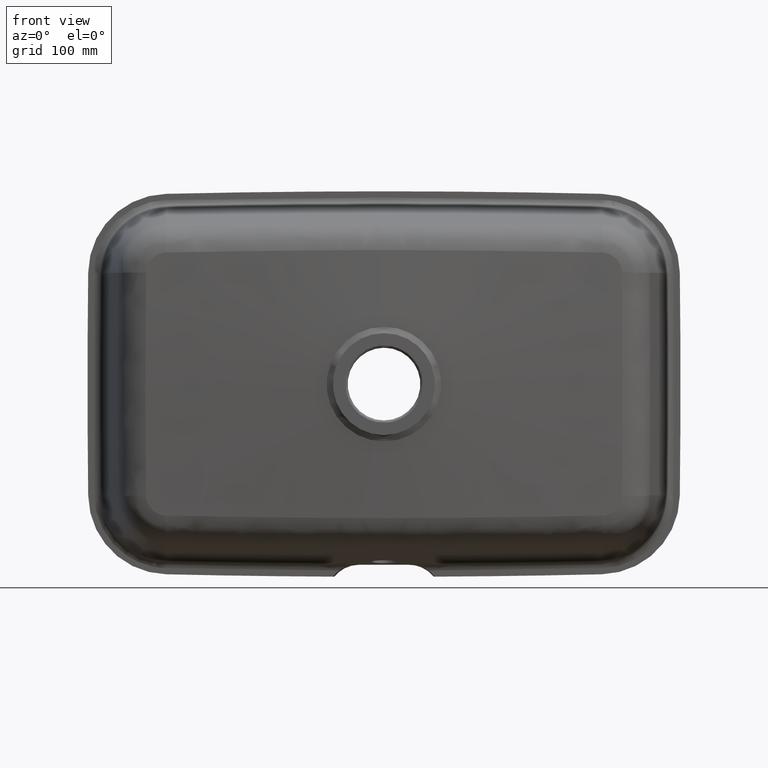
[diagram: clean part render]
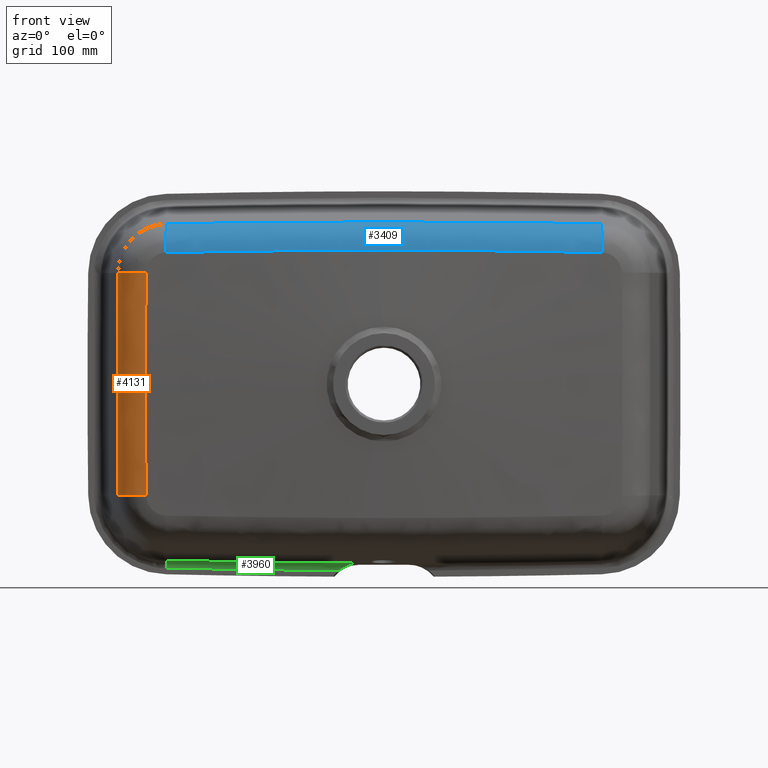
[diagram: same view with three faces highlighted in distinct colors, each labeled with its STEP entity id]
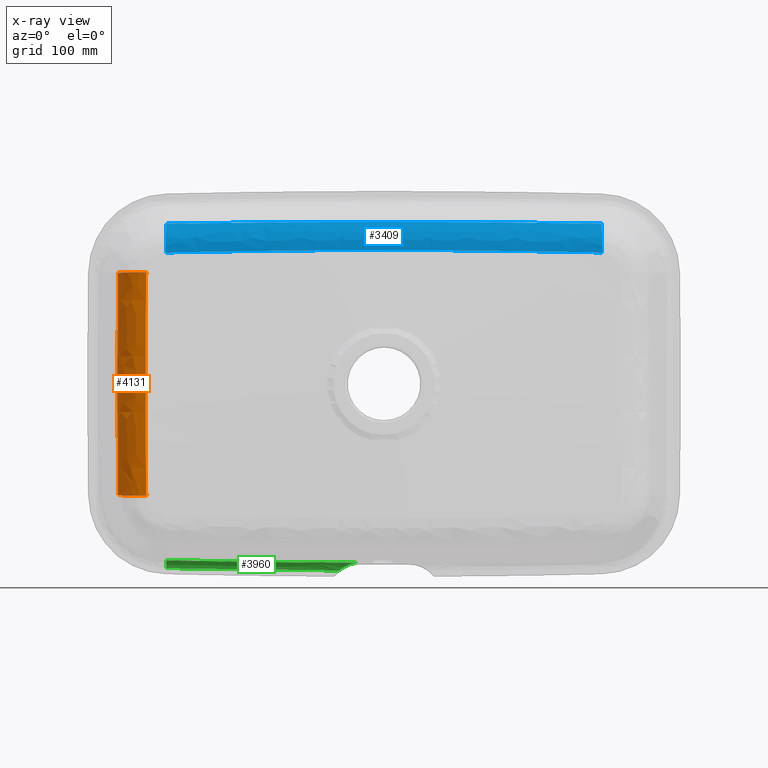
[diagram: x-ray of the same camera — body ghosted, the three highlighted faces saturated]
A machine part, front view with three faces highlighted in distinct colors.
The next image is the same camera in x-ray (body ghosted, the three faces saturated) — at least one of them is partly hidden behind the body in this view.
Their STEP definitions:

[orange] entity #4131 — the highlighted face is a freeform B-spline surface patch.
#95 = CARTESIAN_POINT ( 'NONE',  ( -328.7672207530991400, 1.842486478720332600, 46.50219259363181100 ) ) ;
#97 = CARTESIAN_POINT ( 'NONE',  ( -297.3579240470770600, 0.3621537931018299900, 70.83261693774457500 ) ) ;
#117 = CARTESIAN_POINT ( 'NONE',  ( -297.3738511519121100, 0.3295768318143922900, -68.29572180239114200 ) ) ;
#137 = CARTESIAN_POINT ( 'NONE',  ( -297.3182443790823900, 0.4428307403513225300, 76.78519859580959000 ) ) ;
#164 = CARTESIAN_POINT ( 'NONE',  ( -297.3670485678923700, 0.3435115021588291400, -69.39026563185751700 ) ) ;
#170 = EDGE_CURVE ( 'NONE', #5391, #1202, #2862, .T. ) ;
#182 = CARTESIAN_POINT ( 'NONE',  ( -297.3613637278033900, 0.3551307607637283500, 70.29171724250841200 ) ) ;
#213 = VERTEX_POINT ( 'NONE', #2186 ) ;
#290 = CARTESIAN_POINT ( 'NONE',  ( -297.0956194081391600, 0.8941163893356024500, -104.2660252727818200 ) ) ;
#438 = CARTESIAN_POINT ( 'NONE',  ( -297.5857285188622000, -0.1065972666590818400, 23.20584004869952500 ) ) ;
#462 = CARTESIAN_POINT ( 'NONE',  ( -297.0032457081161400, 1.084449245640226800, -115.9782568244856300 ) ) ;
#592 = CARTESIAN_POINT ( 'NONE',  ( -332.1989570571387300, 33.95158041942245600, 115.5759626356421000 ) ) ;
#603 = CARTESIAN_POINT ( 'NONE',  ( -332.3681243704535300, 33.50074340485914300, 91.63501201997371500 ) ) ;
#616 = CARTESIAN_POINT ( 'NONE',  ( -297.4328826042959100, 0.2076572902845721700, -57.94128720203825400 ) ) ;
#626 = CARTESIAN_POINT ( 'NONE',  ( -332.6375139525641800, 32.76054043742331600, 11.40569750800405700 ) ) ;
#630 = CARTESIAN_POINT ( 'NONE',  ( -331.9746779784383100, 34.50645032397440600, 138.6911588304042500 ) ) ;
#642 = CARTESIAN_POINT ( 'NONE',  ( -297.5121076602388300, 0.04547575626139634100, -40.57345313955058000 ) ) ;
#666 = CARTESIAN_POINT ( 'NONE',  ( -296.8588046936282600, 1.366724518217577800, 127.4564508525214400 ) ) ;
#697 = CARTESIAN_POINT ( 'NONE',  ( -331.9746779784383100, 34.50645032397598300, -138.6911588304085400 ) ) ;
#704 = CARTESIAN_POINT ( 'NONE',  ( -297.4876675836992500, 0.09491346182121386500, 46.35747774692043800 ) ) ;
#750 = CARTESIAN_POINT ( 'NONE',  ( -296.8637095435991600, 1.358474738928601800, -127.4174784385970700 ) ) ;
#867 = DIRECTION ( 'NONE',  ( 0.0000000000000000000, 0.9997100509228673500, 0.02407932897316711700 ) ) ;
#1030 = DIRECTION ( 'NONE',  ( 0.0000000000000000000, 0.9997100509228673500, -0.02407932897316409200 ) ) ;
#1062 = CARTESIAN_POINT ( 'NONE',  ( -332.3689467730628700, 33.49625388902245500, -89.02948227144655400 ) ) ;
#1106 = CARTESIAN_POINT ( 'NONE',  ( -332.4723717214585600, 33.21733549358783200, -69.65036190163920100 ) ) ;
#1144 = CARTESIAN_POINT ( 'NONE',  ( -297.3497985478690000, 0.3787210575853142100, 72.09482968183196800 ) ) ;
#1167 = CARTESIAN_POINT ( 'NONE',  ( -297.5050205630004700, 0.05956876490051518000, 42.01818456578231300 ) ) ;
#1172 = CARTESIAN_POINT ( 'NONE',  ( -332.4729929383238400, 33.21564690355455700, -69.51973138521701400 ) ) ;
#1186 = CARTESIAN_POINT ( 'NONE',  ( -297.5327356021063600, 0.002874343243645564400, -34.05833513654436500 ) ) ;
#1202 = VERTEX_POINT ( 'NONE', #630 ) ;
#1216 = CARTESIAN_POINT ( 'NONE',  ( -297.4887013818169000, 0.09260200813087864100, -46.35485921278198200 ) ) ;
#1238 = CARTESIAN_POINT ( 'NONE',  ( -297.3636472731835200, 0.3504659000647955500, 69.93112734670113200 ) ) ;
#1288 = CARTESIAN_POINT ( 'NONE',  ( -297.0964807836920200, 0.8923834103938624900, -104.1731962756046100 ) ) ;
#1516 = AXIS2_PLACEMENT_3D ( 'NONE', #1560, #5806, #1030 ) ;
#1560 = CARTESIAN_POINT ( 'NONE',  ( -294.7571751292802000, 39.07655070167041300, 138.2203465422805900 ) ) ;
#1626 = CARTESIAN_POINT ( 'NONE',  ( -328.1328441058635100, 3.293342863033454500, -139.4057300317861300 ) ) ;
#1641 = VERTEX_POINT ( 'NONE', #697 ) ;
#1649 = CARTESIAN_POINT ( 'NONE',  ( -328.5379287737193300, 2.382988830994071400, 92.97544478747742900 ) ) ;
#1651 = CARTESIAN_POINT ( 'NONE',  ( -297.5673209860408400, -0.06853321723669567000, 23.15281199573299300 ) ) ;
#1670 = CARTESIAN_POINT ( 'NONE',  ( -328.5379287724383600, 2.382988831077406600, -92.97544478760606500 ) ) ;
#1673 = CARTESIAN_POINT ( 'NONE',  ( -297.0830388455966000, 0.9194058188878551100, 105.6133318915943400 ) ) ;
#1693 = CARTESIAN_POINT ( 'NONE',  ( -297.1412002681401500, 0.8021370179960812800, -99.24877030736325900 ) ) ;
#1704 = CARTESIAN_POINT ( 'NONE',  ( -332.4740261796241600, 33.21283806766448500, 69.30204536714474300 ) ) ;
#1724 = CARTESIAN_POINT ( 'NONE',  ( -297.2886543496346100, 0.5027903312125841000, -81.11350185733516600 ) ) ;
#1749 = CARTESIAN_POINT ( 'NONE',  ( -297.4091105026099600, 0.2568704981298365300, -62.29620079315856200 ) ) ;
#1862 = CIRCLE ( 'NONE', #3250, 37.49999999999987900 ) ;
#1897 =( BOUNDED_SURFACE ( )  B_SPLINE_SURFACE ( 3, 2, ( 
 ( #1911, #5732, #2735 ),
 ( #592, #3288, #6468 ),
 ( #3656, #1649, #2603 ),
 ( #5779, #95, #6840 ),
 ( #4864, #4889, #438 ),
 ( #6327, #4356, #5397 ),
 ( #6442, #2033, #4729 ),
 ( #6869, #1670, #5242 ),
 ( #2171, #2189, #462 ),
 ( #3101, #1626, #6276 ) ),
 .UNSPECIFIED., .F., .F., .F. ) 
 B_SPLINE_SURFACE_WITH_KNOTS ( ( 4, 2, 2, 2, 4 ),
 ( 3, 3 ),
 ( 5.551115123125782700E-017, 0.06911017327114144000, 0.1382203465422828200, 0.2073305198134242100, 0.2764406930845655900 ),
 ( 0.0000000000000000000, 1.000000000000000000 ),
 .UNSPECIFIED. ) 
 GEOMETRIC_REPRESENTATION_ITEM ( )  RATIONAL_B_SPLINE_SURFACE ( (
 ( 1.000000000000000000, 0.7661396647223608400, 1.000000000000000000),
 ( 1.000000000000000000, 0.7666214169016424300, 1.000000000000000000),
 ( 1.000000000000000000, 0.7670467972024492800, 1.000000000000000000),
 ( 1.000000000000000000, 0.7676434917159542500, 1.000000000000000000),
 ( 1.000000000000000000, 0.7678105821205746300, 1.000000000000000000),
 ( 1.000000000000000000, 0.7678105821205746300, 1.000000000000000000),
 ( 1.000000000000000000, 0.7676434917146793800, 1.000000000000000000),
 ( 1.000000000000000000, 0.7670467972037241500, 1.000000000000000000),
 ( 1.000000000000000000, 0.7666214169006841900, 1.000000000000000000),
 ( 1.000000000000000000, 0.7661396647223608400, 1.000000000000000000) ) ) 
 REPRESENTATION_ITEM ( '' )  SURFACE ( )  );
#1911 = CARTESIAN_POINT ( 'NONE',  ( -331.9746779784392200, 34.50645032397736900, 138.6911588304041300 ) ) ;
#2033 = CARTESIAN_POINT ( 'NONE',  ( -328.7672207543792500, 1.842486478636302700, -46.50219259343523200 ) ) ;
#2098 = CARTESIAN_POINT ( 'NONE',  ( -332.0908231386100100, 34.21910541126162300, -126.7207237633525800 ) ) ;
#2135 = ORIENTED_EDGE ( 'NONE', *, *, #3511, .F. ) ;
#2171 = CARTESIAN_POINT ( 'NONE',  ( -332.1989570576559500, 33.95158042361256200, -115.5759626354269300 ) ) ;
#2186 = CARTESIAN_POINT ( 'NONE',  ( -296.7207041765974500, 1.639313077406194800, -139.1411031576336700 ) ) ;
#2189 = CARTESIAN_POINT ( 'NONE',  ( -328.3653421158827500, 2.783788590841352700, -116.2078091419830300 ) ) ;
#2217 = CARTESIAN_POINT ( 'NONE',  ( -296.9522383649178900, 1.180844959250527200, 118.7654532214175200 ) ) ;
#2223 = EDGE_LOOP ( 'NONE', ( #5540, #4506, #6419, #2135 ) ) ;
#2241 = CARTESIAN_POINT ( 'NONE',  ( -297.3681991299047800, 0.3411568440508040400, -69.20623626349478700 ) ) ;
#2259 = CARTESIAN_POINT ( 'NONE',  ( -297.5857294101474500, -0.1065972154661055900, -5.803853065961321900 ) ) ;
#2282 = CARTESIAN_POINT ( 'NONE',  ( -297.1490916007422200, 0.7865607807484771300, 98.51131854689634800 ) ) ;
#2603 = CARTESIAN_POINT ( 'NONE',  ( -297.2199869234362400, 0.6442512116495010500, 92.79753598495760500 ) ) ;
#2616 = CARTESIAN_POINT ( 'NONE',  ( -331.9746779784383100, 34.50645032397598300, -138.6911588304085400 ) ) ;
#2653 = CARTESIAN_POINT ( 'NONE',  ( -296.7922068433516100, 1.498893941190802400, 133.2792922038973100 ) ) ;
#2698 = CARTESIAN_POINT ( 'NONE',  ( -332.4973149511139900, 33.14942130502144100, 64.22683646928031500 ) ) ;
#2721 = CARTESIAN_POINT ( 'NONE',  ( -332.4742533153582800, 33.21222054496487900, 69.25410030096323100 ) ) ;
#2735 = CARTESIAN_POINT ( 'NONE',  ( -296.7207041746870000, 1.639313081159166100, 139.1411033143012300 ) ) ;
#2738 = CARTESIAN_POINT ( 'NONE',  ( -297.5293007657272700, 0.009974201452527866100, 35.14879297668145600 ) ) ;
#2749 = CARTESIAN_POINT ( 'NONE',  ( -332.6177693663135000, 32.81714819719214700, 28.62818231582702200 ) ) ;
#2759 = CARTESIAN_POINT ( 'NONE',  ( -297.5221434485901600, 0.02467357081022031700, 37.31726729483948200 ) ) ;
#2780 = CARTESIAN_POINT ( 'NONE',  ( -297.5132835139559700, 0.04276319794836890000, 39.84871554066720700 ) ) ;
#2789 = CARTESIAN_POINT ( 'NONE',  ( -331.9746779784383100, 34.50645032397440600, 138.6911588304042500 ) ) ;
#2809 = CARTESIAN_POINT ( 'NONE',  ( -297.3296874944328500, 0.4199153632536383700, -75.33968518535620300 ) ) ;
#2835 = CARTESIAN_POINT ( 'NONE',  ( -297.2660821339249500, 0.5486210602653941400, 84.00995827525795800 ) ) ;
#2862 = CIRCLE ( 'NONE', #1516, 37.49999999999997900 ) ;
#2943 = EDGE_CURVE ( 'NONE', #1641, #1202, #5164, .T. ) ;
#3101 = CARTESIAN_POINT ( 'NONE',  ( -331.9746779784392200, 34.50645032397748900, -138.6911588304086500 ) ) ;
#3216 = CARTESIAN_POINT ( 'NONE',  ( -332.4245103243984000, 33.34696948087901100, -79.14236959368133700 ) ) ;
#3234 = CARTESIAN_POINT ( 'NONE',  ( -332.1891672233725800, 33.96767870179865400, -114.9566853721221400 ) ) ;
#3250 = AXIS2_PLACEMENT_3D ( 'NONE', #3512, #6245, #867 ) ;
#3257 = CARTESIAN_POINT ( 'NONE',  ( -332.2069683316262900, 33.93176041730012600, 114.7502853113458900 ) ) ;
#3288 = CARTESIAN_POINT ( 'NONE',  ( -328.3653420922260600, 2.783788589016781500, 116.2078091419434700 ) ) ;
#3291 = CARTESIAN_POINT ( 'NONE',  ( -297.5281391983041900, 0.01236637880366318700, 35.50877394452827900 ) ) ;
#3300 = CARTESIAN_POINT ( 'NONE',  ( -332.4753349057012300, 33.20927973705076400, 69.02541468029491500 ) ) ;
#3311 = CARTESIAN_POINT ( 'NONE',  ( -297.5857267362924900, -0.1065973690449637800, 11.60770729534557700 ) ) ;
#3331 = CARTESIAN_POINT ( 'NONE',  ( -297.5804428457258300, -0.09708115234076215800, -11.59199786564276400 ) ) ;
#3350 = CARTESIAN_POINT ( 'NONE',  ( -297.5382211000479100, -0.008537452688698786400, -32.24183364217411500 ) ) ;
#3373 = CARTESIAN_POINT ( 'NONE',  ( -297.0939364062557500, 0.8975016275494893700, 104.4471506827825400 ) ) ;
#3511 = EDGE_CURVE ( 'NONE', #5391, #213, #4781, .T. ) ;
#3512 = CARTESIAN_POINT ( 'NONE',  ( -294.7571751292795700, 39.07655070167037100, -138.2203465422849700 ) ) ;
#3656 = CARTESIAN_POINT ( 'NONE',  ( -332.3642085949647400, 33.51138845411743700, 92.46077632582408500 ) ) ;
#3814 = CARTESIAN_POINT ( 'NONE',  ( -297.5349549119905000, -0.001734981435225396100, -33.33163813724993200 ) ) ;
#3837 = CARTESIAN_POINT ( 'NONE',  ( -297.4750052782428000, 0.1207880104568884600, 49.25081613192811100 ) ) ;
#3853 = CARTESIAN_POINT ( 'NONE',  ( -297.5666290890332000, -0.06853303975416009900, -20.27894302881262000 ) ) ;
#3876 = CARTESIAN_POINT ( 'NONE',  ( -297.5610003654087400, -0.05663799924219517500, -23.17537770739084000 ) ) ;
#3901 = CARTESIAN_POINT ( 'NONE',  ( -297.3647724212062800, 0.3481662578687970100, 69.75272235745458700 ) ) ;
#3924 = CARTESIAN_POINT ( 'NONE',  ( -297.1182654560095700, 0.8484854194560689200, -101.8006026091812800 ) ) ;
#3948 = CARTESIAN_POINT ( 'NONE',  ( -296.9879749469356500, 1.110635328371784000, -115.8507588392251600 ) ) ;
#3991 = EDGE_CURVE ( 'NONE', #213, #1641, #1862, .T. ) ;
#4131 = ADVANCED_FACE ( 'NONE', ( #6536 ), #1897, .T. ) ;
#4186 = CARTESIAN_POINT ( 'NONE',  ( -332.4620689671601200, 33.24531862765587700, -71.78630911279397300 ) ) ;
#4356 = CARTESIAN_POINT ( 'NONE',  ( -328.8241283013111900, 1.703006630153734800, -23.24670914155009200 ) ) ;
#4358 = CARTESIAN_POINT ( 'NONE',  ( -297.3816416269139000, 0.3135797044951658100, -67.02160624910007400 ) ) ;
#4378 = CARTESIAN_POINT ( 'NONE',  ( -297.1973101566892400, 0.6883096117403321200, -92.70407096524225200 ) ) ;
#4386 = CARTESIAN_POINT ( 'NONE',  ( -332.5848718896922400, 32.91149215710483800, -45.92648951683558100 ) ) ;
#4404 = CARTESIAN_POINT ( 'NONE',  ( -297.0889278162644000, 0.9075721348145481300, 104.9845197854541000 ) ) ;
#4429 = CARTESIAN_POINT ( 'NONE',  ( -297.1983653851014000, 0.6861130764242560100, 92.69931668691567900 ) ) ;
#4449 = CARTESIAN_POINT ( 'NONE',  ( -297.5257649218822300, 0.01724591653087601700, 36.23219811987692700 ) ) ;
#4468 = CARTESIAN_POINT ( 'NONE',  ( -297.1007071956390200, 0.8838773832371809000, -103.7166961627300200 ) ) ;
#4506 = ORIENTED_EDGE ( 'NONE', *, *, #2943, .F. ) ;
#4514 = CARTESIAN_POINT ( 'NONE',  ( -296.7207041765974500, 1.639313077406194800, -139.1411031576336700 ) ) ;
#4729 = CARTESIAN_POINT ( 'NONE',  ( -297.5114201681177000, 0.04827296423510244600, -46.41134508034782900 ) ) ;
#4781 = B_SPLINE_CURVE_WITH_KNOTS ( 'NONE', 3,
 ( #5837, #2653, #666, #2217, #6020, #5445, #5466, #5993, #1673, #4404, #6559, #5421, #3373, #2282, #4429, #2835, #5939, #137, #6497, #1144, #97, #182, #1238, #3901, #5489, #6517, #3837, #704, #1167, #2780, #2759, #4449, #3291, #2738, #1651, #3311, #2259, #3331, #3853, #3876, #5919, #5400, #3350, #3814, #1186, #4959, #642, #1216, #4916, #616, #1749, #4935, #4358, #117, #6534, #2241, #164, #2809, #1724, #4891, #4378, #5966, #1693, #3924, #6604, #4468, #6137, #1288, #290, #3948, #750, #4514 ),
 .UNSPECIFIED., .F., .F.,
 ( 4, 2, 2, 1, 1, 1, 1, 2, 2, 2, 2, 1, 1, 1, 2, 2, 2, 2, 1, 1, 2, 2, 2, 2, 2, 1, 1, 2, 2, 2, 2, 1, 1, 1, 2, 2, 2, 2, 1, 1, 1, 1, 2, 2, 4 ),
 ( 0.0000000000000000000, 0.06249999999999579500, 0.09374999999999376900, 0.1093749999999927700, 0.1171874999999923400, 0.1210937499999920500, 0.1230468749999919600, 0.1240234374999918500, 0.1249999999999917300, 0.1874999999999927000, 0.2187499999999932300, 0.2343749999999934800, 0.2421874999999935300, 0.2460937499999934800, 0.2480468749999934800, 0.2499999999999934500, 0.3124999999999912300, 0.3437499999999901200, 0.3593749999999896200, 0.3671874999999894000, 0.3710937499999892300, 0.3749999999999890600, 0.4999999999999856800, 0.5624999999999839000, 0.5937499999999830100, 0.6093749999999826800, 0.6171874999999824600, 0.6210937499999824600, 0.6249999999999823500, 0.6874999999999815700, 0.7187499999999812400, 0.7343749999999811300, 0.7421874999999809000, 0.7460937499999809000, 0.7480468749999810200, 0.7499999999999810200, 0.8124999999999825700, 0.8437499999999832400, 0.8593749999999835700, 0.8671874999999836800, 0.8710937499999837900, 0.8730468749999839000, 0.8740234374999839000, 0.8749999999999840100, 1.000000000000000000 ),
 .UNSPECIFIED. ) ;
#4807 = CARTESIAN_POINT ( 'NONE',  ( -332.4499356563784400, 33.27822010702701800, -74.23268406248922700 ) ) ;
#4831 = CARTESIAN_POINT ( 'NONE',  ( -332.4736028446256500, 33.21398894901722100, -69.39131982516271100 ) ) ;
#4842 = CARTESIAN_POINT ( 'NONE',  ( -296.7207041746870000, 1.639313081159200000, 139.1411033143025400 ) ) ;
#4864 = CARTESIAN_POINT ( 'NONE',  ( -332.6375138959276700, 32.76053997615913000, 23.11519467784527700 ) ) ;
#4875 = CARTESIAN_POINT ( 'NONE',  ( -332.4709177603444900, 33.22128704643295500, -69.95523259554508400 ) ) ;
#4889 = CARTESIAN_POINT ( 'NONE',  ( -328.8241283013111900, 1.703006630153734800, 23.24670914154554800 ) ) ;
#4891 = CARTESIAN_POINT ( 'NONE',  ( -297.2209376842228000, 0.6402823462242401800, -89.80286024862408600 ) ) ;
#4916 = CARTESIAN_POINT ( 'NONE',  ( -297.4476130231492400, 0.1771599048782546400, -55.04271860992564300 ) ) ;
#4922 = CARTESIAN_POINT ( 'NONE',  ( -332.4746862188760000, 33.21104353079500300, 69.16262466241738600 ) ) ;
#4935 = CARTESIAN_POINT ( 'NONE',  ( -297.3968020424823100, 0.2823438844864154500, -64.47542160248923400 ) ) ;
#4959 = CARTESIAN_POINT ( 'NONE',  ( -297.5315994733141500, 0.005227647901471259800, -34.42351665601773200 ) ) ;
#5164 = B_SPLINE_CURVE_WITH_KNOTS ( 'NONE', 3,
 ( #2616, #2098, #3234, #5321, #1062, #3216, #4807, #4186, #6317, #4875, #1106, #1172, #5885, #4831, #4386, #5385, #626, #2749, #6478, #5948, #2698, #5975, #5430, #6431, #3300, #4922, #2721, #1704, #603, #3257, #2789 ),
 .UNSPECIFIED., .F., .F.,
 ( 4, 2, 1, 1, 1, 1, 1, 1, 1, 2, 2, 2, 1, 1, 1, 1, 1, 1, 1, 1, 2, 2, 4 ),
 ( 0.0000000000000000000, 0.1249999999999863400, 0.1874999999999795200, 0.2187499999999761000, 0.2343749999999744100, 0.2421874999999734700, 0.2460937499999729900, 0.2480468749999728600, 0.2490234374999727700, 0.2495117187499727200, 0.2499999999999726600, 0.4999999999999627000, 0.6249999999999577000, 0.6874999999999551500, 0.7187499999999539300, 0.7343749999999532600, 0.7421874999999529300, 0.7460937499999528200, 0.7480468749999527000, 0.7490234374999527000, 0.7495117187499527000, 0.7499999999999528200, 1.000000000000000000 ),
 .UNSPECIFIED. ) ;
#5242 = CARTESIAN_POINT ( 'NONE',  ( -297.2199869227971500, 0.6442512116114709200, -92.79753598480503700 ) ) ;
#5321 = CARTESIAN_POINT ( 'NONE',  ( -332.3129730649379800, 33.64441594247021800, -97.62027551735552300 ) ) ;
#5385 = CARTESIAN_POINT ( 'NONE',  ( -332.6375137826516900, 32.76053905359685100, -22.81139501601425900 ) ) ;
#5391 = VERTEX_POINT ( 'NONE', #4842 ) ;
#5397 = CARTESIAN_POINT ( 'NONE',  ( -297.5857285188622000, -0.1065972666590576900, -23.20584004870406900 ) ) ;
#5400 = CARTESIAN_POINT ( 'NONE',  ( -297.5454153577038600, -0.02362927525964227800, -29.70054922567573600 ) ) ;
#5421 = CARTESIAN_POINT ( 'NONE',  ( -297.0931149017844700, 0.8991537428816898100, 104.5354427882178800 ) ) ;
#5430 = CARTESIAN_POINT ( 'NONE',  ( -332.4798429731487800, 33.19701782886142600, 68.06511511490641900 ) ) ;
#5445 = CARTESIAN_POINT ( 'NONE',  ( -297.0257354221031400, 1.034195043773174800, 111.5496896516821300 ) ) ;
#5466 = CARTESIAN_POINT ( 'NONE',  ( -297.0470441554126100, 0.9915922088729073300, 109.3888958657903900 ) ) ;
#5489 = CARTESIAN_POINT ( 'NONE',  ( -297.4025240273665000, 0.2709635098321333500, 63.74109560801717600 ) ) ;
#5540 = ORIENTED_EDGE ( 'NONE', *, *, #170, .T. ) ;
#5732 = CARTESIAN_POINT ( 'NONE',  ( -328.1328441058635100, 3.293342863033330600, 139.4057300317815300 ) ) ;
#5779 = CARTESIAN_POINT ( 'NONE',  ( -332.5834308592922100, 32.91541020736541900, 46.23038934538490000 ) ) ;
#5806 = DIRECTION ( 'NONE',  ( -0.009689363052543972100, -0.02407819861770594700, -0.9996631215539374400 ) ) ;
#5837 = CARTESIAN_POINT ( 'NONE',  ( -296.7207041746870000, 1.639313081159200000, 139.1411033143025400 ) ) ;
#5885 = CARTESIAN_POINT ( 'NONE',  ( -332.4734066588319500, 33.21452227300226000, -69.43265067480736300 ) ) ;
#5919 = CARTESIAN_POINT ( 'NONE',  ( -297.5508907663404400, -0.03522693399960107100, -27.52471200402968400 ) ) ;
#5939 = CARTESIAN_POINT ( 'NONE',  ( -297.2875996414959400, 0.5049869782670183300, 81.11826289485209400 ) ) ;
#5948 = CARTESIAN_POINT ( 'NONE',  ( -332.5192212483855200, 33.08957092209523400, 59.11639833211427900 ) ) ;
#5966 = CARTESIAN_POINT ( 'NONE',  ( -297.1601856127372200, 0.7636454007827806500, -97.06558802527774800 ) ) ;
#5975 = CARTESIAN_POINT ( 'NONE',  ( -332.4857664952843400, 33.18089434599613700, 66.78516985483933900 ) ) ;
#5993 = CARTESIAN_POINT ( 'NONE',  ( -297.0711659619386800, 0.9432423706837859100, 106.8713321244792500 ) ) ;
#6020 = CARTESIAN_POINT ( 'NONE',  ( -296.9822940753240300, 1.120947535510308200, 115.8756484412280100 ) ) ;
#6137 = CARTESIAN_POINT ( 'NONE',  ( -297.0981728507300100, 0.8889784253977774900, -103.9905867907371700 ) ) ;
#6245 = DIRECTION ( 'NONE',  ( 0.009689363052546744200, 0.02407819861770892100, -0.9996631215539374400 ) ) ;
#6276 = CARTESIAN_POINT ( 'NONE',  ( -296.7207041746870000, 1.639313081159290900, -139.1411033143057200 ) ) ;
#6317 = CARTESIAN_POINT ( 'NONE',  ( -332.4679919988323600, 33.22923618985909400, -70.56523860557548700 ) ) ;
#6327 = CARTESIAN_POINT ( 'NONE',  ( -332.6375138959276700, 32.76053997615913000, -23.11519467784978900 ) ) ;
#6419 = ORIENTED_EDGE ( 'NONE', *, *, #3991, .F. ) ;
#6431 = CARTESIAN_POINT ( 'NONE',  ( -332.4768438300632200, 33.20517631088858900, 68.70528238523368700 ) ) ;
#6442 = CARTESIAN_POINT ( 'NONE',  ( -332.5834308592926000, 32.91541020736006800, -46.23038934522447400 ) ) ;
#6468 = CARTESIAN_POINT ( 'NONE',  ( -297.0032456844343800, 1.084449244388899800, 115.9782568241092000 ) ) ;
#6478 = CARTESIAN_POINT ( 'NONE',  ( -332.5583012620400000, 32.98225295233635300, 48.92043734564266100 ) ) ;
#6497 = CARTESIAN_POINT ( 'NONE',  ( -297.3331564491803100, 0.4125763426639416600, 74.61978471760814100 ) ) ;
#6517 = CARTESIAN_POINT ( 'NONE',  ( -297.4339168309703600, 0.2053459084295357300, 57.93867554325800700 ) ) ;
#6534 = CARTESIAN_POINT ( 'NONE',  ( -297.3704661785072900, 0.3365140043758150800, -68.84199946949786400 ) ) ;
#6536 = FACE_OUTER_BOUND ( 'NONE', #2223, .T. ) ;
#6559 = CARTESIAN_POINT ( 'NONE',  ( -297.0914414347640200, 0.9025186827455571300, 104.7150683747100600 ) ) ;
#6604 = CARTESIAN_POINT ( 'NONE',  ( -297.1065945038832300, 0.8720199988638466200, -103.0777821921042700 ) ) ;
#6840 = CARTESIAN_POINT ( 'NONE',  ( -297.5114201674786000, 0.04827296419693347800, 46.41134508018609500 ) ) ;
#6869 = CARTESIAN_POINT ( 'NONE',  ( -332.3642085949643400, 33.51138845412290800, -92.46077632599366300 ) ) ;

[blue] entity #3409 — the highlighted face is a freeform B-spline surface patch.
#17 = CARTESIAN_POINT ( 'NONE',  ( 182.0997685248449900, -1.870342937561499500, 197.5012817288620100 ) ) ;
#37 = CARTESIAN_POINT ( 'NONE',  ( 158.1923000236463100, 28.80463234258183600, 201.6128117591247000 ) ) ;
#39 = CARTESIAN_POINT ( 'NONE',  ( 227.3659738255526000, -0.008843030942415211800, 196.9441192796687700 ) ) ;
#48 = CARTESIAN_POINT ( 'NONE',  ( -33.84853350367068000, -7.469398055711816500, 167.0910394457193300 ) ) ;
#56 = CARTESIAN_POINT ( 'NONE',  ( 0.02518994807304665200, 25.20501604504256600, 202.2098122076532700 ) ) ;
#59 = CARTESIAN_POINT ( 'NONE',  ( 57.14625401464247300, -5.420171989243590900, 198.3165719178687700 ) ) ;
#66 = CARTESIAN_POINT ( 'NONE',  ( -14.52612477487243400, -7.626502123317889600, 167.1454852885629800 ) ) ;
#89 = CARTESIAN_POINT ( 'NONE',  ( -68.01280564172361700, -6.905190972665726800, 166.8986514005766000 ) ) ;
#90 = CARTESIAN_POINT ( 'NONE',  ( 51.39921345848787800, -7.223083391530557200, 167.0064339990821600 ) ) ;
#105 = CARTESIAN_POINT ( 'NONE',  ( -227.3457268011580700, -0.009747282504848776800, 196.9444202984618600 ) ) ;
#109 = CARTESIAN_POINT ( 'NONE',  ( -79.21486794285083000, -6.651919384837731800, 166.8131575925330300 ) ) ;
#111 = CARTESIAN_POINT ( 'NONE',  ( 31.18647033913867300, -7.499584928302442500, 167.1014726712851900 ) ) ;
#153 = CARTESIAN_POINT ( 'NONE',  ( -189.5725219358711200, -2.767389169794928000, 165.5157531461936200 ) ) ;
#161 = VERTEX_POINT ( 'NONE', #1468 ) ;
#175 = CARTESIAN_POINT ( 'NONE',  ( -192.4336837862376500, -2.643756182533383300, 165.4725800375595100 ) ) ;
#193 = CARTESIAN_POINT ( 'NONE',  ( -201.5087783853575400, -2.246050075981478800, 165.3322204764246000 ) ) ;
#215 = CARTESIAN_POINT ( 'NONE',  ( -169.4438636844127800, -3.612161099191010900, 165.8050982295801200 ) ) ;
#237 = CARTESIAN_POINT ( 'NONE',  ( -164.9630777374282800, -3.794169053083450200, 165.8667294270202600 ) ) ;
#259 = CARTESIAN_POINT ( 'NONE',  ( -248.4782153801671700, 32.82098420834427100, 200.5498003431868600 ) ) ;
#286 = CIRCLE ( 'NONE', #1210, 37.50000000000001400 ) ;
#302 = CARTESIAN_POINT ( 'NONE',  ( 238.1546248580404200, -0.5710464517974549500, 164.7182010236256800 ) ) ;
#326 = CARTESIAN_POINT ( 'NONE',  ( 238.3669364156818900, -0.5610551069524752900, 164.7144068911034700 ) ) ;
#351 = CARTESIAN_POINT ( 'NONE',  ( 204.6706323066044300, -2.105780438088327200, 165.2823441565059600 ) ) ;
#370 = CARTESIAN_POINT ( 'NONE',  ( 170.1642519080290900, -3.582703236593650900, 165.7951132906601400 ) ) ;
#393 = CARTESIAN_POINT ( 'NONE',  ( 107.5950798412646900, -5.859300522320902300, 166.5514103176504900 ) ) ;
#422 = CARTESIAN_POINT ( 'NONE',  ( 170.3767909069017900, -3.574001993994770500, 165.7921636782168100 ) ) ;
#447 = CARTESIAN_POINT ( 'NONE',  ( 136.2273720854079500, -4.895218063759275900, 166.2333082742890200 ) ) ;
#474 = CARTESIAN_POINT ( 'NONE',  ( 51.75154650733497200, -7.217172628754367400, 167.0044146818053200 ) ) ;
#502 = CARTESIAN_POINT ( 'NONE',  ( 272.0606072396838000, 1.059019524423221400, 164.0759872255029800 ) ) ;
#523 = CARTESIAN_POINT ( 'NONE',  ( 226.9648873416750800, -1.114436086683801200, 164.9293740902082000 ) ) ;
#542 = CARTESIAN_POINT ( 'NONE',  ( 249.5186551328052600, -0.04568192525948783900, 164.5276491430603000 ) ) ;
#567 = CARTESIAN_POINT ( 'NONE',  ( -73.61697441929777600, -6.784786718179008200, 166.8580820460219100 ) ) ;
#577 = CARTESIAN_POINT ( 'NONE',  ( 271.0585821480725000, 33.92615676724143000, 200.1666486402843100 ) ) ;
#580 = CARTESIAN_POINT ( 'NONE',  ( -22.77154863105607400, -5.798057603698784300, 198.3866554048467800 ) ) ;
#587 = CARTESIAN_POINT ( 'NONE',  ( -33.31356364242415700, -7.475386923852254600, 167.0931050103097800 ) ) ;
#610 = CARTESIAN_POINT ( 'NONE',  ( -100.8058371828302300, -6.064347927080177700, 166.6190241598655200 ) ) ;
#635 = CARTESIAN_POINT ( 'NONE',  ( -94.85290829401788000, -6.236297548767710800, 166.6756508336404200 ) ) ;
#648 = CARTESIAN_POINT ( 'NONE',  ( -249.5088131493365600, -0.04616424695895373500, 164.5278463134663400 ) ) ;
#655 = CARTESIAN_POINT ( 'NONE',  ( -13.46233019136061900, -7.631481134182765300, 167.1471794385646500 ) ) ;
#680 = CARTESIAN_POINT ( 'NONE',  ( -196.7691370138681700, -2.454599592625695200, 165.4060297484558900 ) ) ;
#695 = CARTESIAN_POINT ( 'NONE',  ( -237.9121563361520400, -0.5824538876188578600, 164.7225316147749400 ) ) ;
#718 = CARTESIAN_POINT ( 'NONE',  ( -135.9253986900509400, -4.906136886543508900, 166.2369140762446000 ) ) ;
#719 = CARTESIAN_POINT ( 'NONE',  ( -270.2034996581913900, 38.49625714493453200, 162.9559913433062400 ) ) ;
#743 = CARTESIAN_POINT ( 'NONE',  ( -198.9477894713344000, -2.359094520418007600, 165.3723095971441800 ) ) ;
#760 = CARTESIAN_POINT ( 'NONE',  ( -237.4284210569740900, -0.6052021722057404600, 164.7311632807579000 ) ) ;
#784 = ORIENTED_EDGE ( 'NONE', *, *, #3859, .F. ) ;
#831 = CARTESIAN_POINT ( 'NONE',  ( 232.1676066132684800, -0.8527302011049963100, 164.8251405481513000 ) ) ;
#851 = CARTESIAN_POINT ( 'NONE',  ( 183.9004548561488500, -3.010020744886768600, 165.5998131045347200 ) ) ;
#871 = B_SPLINE_CURVE_WITH_KNOTS ( 'NONE', 3,
 ( #577, #1017, #3230, #1571, #37, #2137, #1590, #3755, #4295, #4255, #2158, #6427, #56, #2115 ),
 .UNSPECIFIED., .F., .F.,
 ( 4, 2, 2, 2, 2, 2, 4 ),
 ( 0.0000000000000000000, 0.2499303640509127100, 0.4998607281018254100, 0.7497910921527380900, 0.8747562741781944600, 0.9997214562036508300, 1.000000000000000000 ),
 .UNSPECIFIED. ) ;
#900 = CARTESIAN_POINT ( 'NONE',  ( 108.9844975561599700, -5.816113998199152300, 166.5371920830781700 ) ) ;
#925 = CARTESIAN_POINT ( 'NONE',  ( 103.2754932295155000, -5.990823855903714800, 166.5947590107140900 ) ) ;
#948 = CARTESIAN_POINT ( 'NONE',  ( 68.36137829608560400, -6.897691125661356000, 166.8961238755660200 ) ) ;
#975 = CARTESIAN_POINT ( 'NONE',  ( 102.6731578997725900, -6.008859321632562500, 166.6007105268779200 ) ) ;
#996 = CARTESIAN_POINT ( 'NONE',  ( 137.2735416006751400, -4.857292503259214000, 166.2207891556064400 ) ) ;
#1017 = CARTESIAN_POINT ( 'NONE',  ( 248.4880693000622800, 32.82146651376828600, 200.5496331402772500 ) ) ;
#1020 = CARTESIAN_POINT ( 'NONE',  ( 91.33415150442878900, -4.795633783508128200, 198.1946182859937300 ) ) ;
#1044 = CARTESIAN_POINT ( 'NONE',  ( 45.70371466193996900, -7.333974855547512400, 167.0442416102169100 ) ) ;
#1061 = CARTESIAN_POINT ( 'NONE',  ( -22.52855422870721500, 25.27145458120568800, 202.2018760616206200 ) ) ;
#1091 = CARTESIAN_POINT ( 'NONE',  ( -39.67944155201347200, -7.399464962967144300, 167.0667454995344200 ) ) ;
#1105 = CARTESIAN_POINT ( 'NONE',  ( -113.9866160144185000, -4.192458171432900100, 198.0712673887190600 ) ) ;
#1111 = CARTESIAN_POINT ( 'NONE',  ( -31.53589927305056800, -7.494764926414249300, 167.0997653123939100 ) ) ;
#1129 = ORIENTED_EDGE ( 'NONE', *, *, #4812, .T. ) ;
#1135 = CARTESIAN_POINT ( 'NONE',  ( -101.4406122645386600, -6.045557219817935000, 166.6128248271970400 ) ) ;
#1158 = CARTESIAN_POINT ( 'NONE',  ( -50.86519295465414800, -7.231971681414551200, 167.0094682147953100 ) ) ;
#1159 = CARTESIAN_POINT ( 'NONE',  ( 18.43473750659918100, -7.604594537486164500, 167.1378820135343500 ) ) ;
#1178 = CARTESIAN_POINT ( 'NONE',  ( -5.669642752966682400, -7.658035858795456000, 167.1563588943421600 ) ) ;
#1195 = VERTEX_POINT ( 'NONE', #4368 ) ;
#1204 = CARTESIAN_POINT ( 'NONE',  ( -203.9213803760447700, -2.139088923657762400, 165.2941998000926600 ) ) ;
#1210 = AXIS2_PLACEMENT_3D ( 'NONE', #4608, #1416, #5144 ) ;
#1230 = CARTESIAN_POINT ( 'NONE',  ( -272.0606070797305700, 1.059019516584544200, 164.0759872287089500 ) ) ;
#1253 = CARTESIAN_POINT ( 'NONE',  ( -209.5136808107478700, -1.890571098636420800, 165.2057615414589100 ) ) ;
#1272 = CARTESIAN_POINT ( 'NONE',  ( -271.0585821480706800, 33.92615676724135200, 200.1666486402829200 ) ) ;
#1279 = CARTESIAN_POINT ( 'NONE',  ( -155.5992171980123500, -4.166107904815865100, 165.9918691761429000 ) ) ;
#1304 = CARTESIAN_POINT ( 'NONE',  ( -202.7940919516000800, -2.189122388714657600, 165.3119946135201700 ) ) ;
#1339 = CARTESIAN_POINT ( 'NONE',  ( 238.6643426155946200, -0.5470548929444739600, 164.7090885403301000 ) ) ;
#1345 = CARTESIAN_POINT ( 'NONE',  ( -22.55375209732918100, 25.27174395644499000, 202.2018393304302900 ) ) ;
#1353 = EDGE_CURVE ( 'NONE', #4317, #6647, #4825, .T. ) ;
#1372 = FACE_OUTER_BOUND ( 'NONE', #6467, .T. ) ;
#1380 = CARTESIAN_POINT ( 'NONE',  ( 181.0967035647326800, -3.128713248682167600, 165.6405926062622300 ) ) ;
#1416 = DIRECTION ( 'NONE',  ( -0.9986537362039485900, -0.04903272547434830300, 0.01692651761147484800 ) ) ;
#1427 = CARTESIAN_POINT ( 'NONE',  ( 102.3721814932146800, -6.017846388833617300, 166.6036769089894800 ) ) ;
#1453 = CARTESIAN_POINT ( 'NONE',  ( 171.2705155805363700, -3.537362366772523400, 165.7797415419298900 ) ) ;
#1468 = CARTESIAN_POINT ( 'NONE',  ( 271.0585821480725000, 33.92615676724143000, 200.1666486402843100 ) ) ;
#1475 = CARTESIAN_POINT ( 'NONE',  ( 65.19910774682964000, -6.965643352187718100, 166.9190218254135800 ) ) ;
#1503 = CARTESIAN_POINT ( 'NONE',  ( 104.4817043709737700, -5.954507599139035700, 166.5827806094826300 ) ) ;
#1527 = CARTESIAN_POINT ( 'NONE',  ( 138.4717120854600700, -4.813670949872523900, 166.2063981358565200 ) ) ;
#1550 = CARTESIAN_POINT ( 'NONE',  ( 249.9723638637626900, 0.9963722928749507700, 196.6099011111477900 ) ) ;
#1571 = CARTESIAN_POINT ( 'NONE',  ( 180.7683022148340500, 29.74479016658127200, 201.4039160481477800 ) ) ;
#1573 = CARTESIAN_POINT ( 'NONE',  ( -11.33724949709211500, -7.662416100356130900, 167.1581299363111300 ) ) ;
#1590 = CARTESIAN_POINT ( 'NONE',  ( 90.45029284708518000, 26.46319899632725700, 202.0391919603518700 ) ) ;
#1593 = CARTESIAN_POINT ( 'NONE',  ( -45.13796984472612900, 25.53111247357945900, 202.1689191594996700 ) ) ;
#1612 = CARTESIAN_POINT ( 'NONE',  ( 113.0333062852129000, 27.16341285808682600, 201.9303967839611600 ) ) ;
#1621 = CARTESIAN_POINT ( 'NONE',  ( -66.80624346211855900, -6.930931099920767800, 166.9073219642980600 ) ) ;
#1633 = CARTESIAN_POINT ( 'NONE',  ( -113.8336250561509400, -5.706448363194711600, 166.5012516087028900 ) ) ;
#1639 = CARTESIAN_POINT ( 'NONE',  ( -47.48100633032483100, -7.286380758906360300, 167.0280093791986400 ) ) ;
#1658 = CARTESIAN_POINT ( 'NONE',  ( -182.0569552411081700, -1.872031984648389300, 197.5017569250251500 ) ) ;
#1665 = CARTESIAN_POINT ( 'NONE',  ( -101.7582172705372400, -6.036127524713601900, 166.6097127060908500 ) ) ;
#1667 = CARTESIAN_POINT ( 'NONE',  ( 20.55861898465109000, -7.590685236798342400, 167.1329742991224000 ) ) ;
#1681 = CARTESIAN_POINT ( 'NONE',  ( -159.1526737661257600, -4.064742836909513100, 165.9590085284439200 ) ) ;
#1687 = CARTESIAN_POINT ( 'NONE',  ( -102.0544815238822500, -6.027314747593443700, 166.6068034779692900 ) ) ;
#1712 = CARTESIAN_POINT ( 'NONE',  ( -49.79389635831037000, -7.249574048492021900, 167.0154722794637500 ) ) ;
#1738 = CARTESIAN_POINT ( 'NONE',  ( -248.9381144202714300, -0.06369098163478713300, 164.5255864029381300 ) ) ;
#1763 = CARTESIAN_POINT ( 'NONE',  ( -204.0365481366475500, -2.133971853155507400, 165.2923789685444500 ) ) ;
#1784 = CARTESIAN_POINT ( 'NONE',  ( -133.5301014849494000, -4.992294296797418000, 166.2653800083678000 ) ) ;
#1809 = CARTESIAN_POINT ( 'NONE',  ( -237.7508603288974300, -0.5900405278753513300, 164.7254109248257500 ) ) ;
#1828 = CARTESIAN_POINT ( 'NONE',  ( 272.0606072396984700, 1.059019524451326500, 164.0759872264171700 ) ) ;
#1833 = CARTESIAN_POINT ( 'NONE',  ( -215.0603994776619700, -1.640139367015167800, 165.1158272272248800 ) ) ;
#1879 = CARTESIAN_POINT ( 'NONE',  ( -158.1375196599294400, 28.80239439389826500, 201.6132972305510700 ) ) ;
#1901 = CARTESIAN_POINT ( 'NONE',  ( 226.3847554431652000, -1.121338958105701200, 164.9255640865409600 ) ) ;
#1917 = CARTESIAN_POINT ( 'NONE',  ( 204.0992115158389000, -2.131187208886799100, 165.2913880235556400 ) ) ;
#1966 = CARTESIAN_POINT ( 'NONE',  ( 136.6754762334183500, -4.878992057683625200, 166.2279511514780700 ) ) ;
#1993 = CARTESIAN_POINT ( 'NONE',  ( 115.9776531451272900, -5.593452454884771700, 166.4638924941010000 ) ) ;
#2014 = CARTESIAN_POINT ( 'NONE',  ( 69.27401189276973500, -6.877921789664369200, 166.8894574836822400 ) ) ;
#2045 = CARTESIAN_POINT ( 'NONE',  ( 79.22997363178885200, -6.648589748653273000, 166.8122063972105600 ) ) ;
#2068 = CARTESIAN_POINT ( 'NONE',  ( 158.4239778309743400, -4.056867219677563700, 165.9554715423141400 ) ) ;
#2097 = CARTESIAN_POINT ( 'NONE',  ( 11.37671604079146800, 25.20531291827452900, 202.2097760279770000 ) ) ;
#2115 = CARTESIAN_POINT ( 'NONE',  ( -3.359393981973880300E-012, 25.20501604567395000, 202.2098122077309800 ) ) ;
#2120 = CARTESIAN_POINT ( 'NONE',  ( 22.67603074736630800, 25.27263494880585900, 202.2017316343317600 ) ) ;
#2137 = CARTESIAN_POINT ( 'NONE',  ( 113.0333062852129000, 27.16341285808688300, 201.9303967839611900 ) ) ;
#2139 = CARTESIAN_POINT ( 'NONE',  ( -56.44443678945673800, 25.72379393803604200, 202.1438995688030500 ) ) ;
#2158 = CARTESIAN_POINT ( 'NONE',  ( 11.37671604079146600, 25.20531291827458300, 202.2097760279770300 ) ) ;
#2160 = CARTESIAN_POINT ( 'NONE',  ( -45.60738529305710600, -5.582763612159993700, 198.3469051382788600 ) ) ;
#2166 = ORIENTED_EDGE ( 'NONE', *, *, #4009, .T. ) ;
#2167 = CARTESIAN_POINT ( 'NONE',  ( -96.29041859931398100, -6.195545215025160400, 166.6622413079333300 ) ) ;
#2183 = CARTESIAN_POINT ( 'NONE',  ( -87.70763087226714600, -6.432523717073213900, 166.7403224401684800 ) ) ;
#2184 = CARTESIAN_POINT ( 'NONE',  ( 39.68886055506522600, -7.398402749170789300, 167.0664192504064800 ) ) ;
#2208 = CARTESIAN_POINT ( 'NONE',  ( 5.678116056728105000, -7.662121201043558600, 167.1580268301881300 ) ) ;
#2231 = CARTESIAN_POINT ( 'NONE',  ( -107.5764678799853700, -5.862882986584034800, 166.5525145486354300 ) ) ;
#2254 = CARTESIAN_POINT ( 'NONE',  ( -64.48954021841072400, -6.979214161209034400, 166.9235848928268500 ) ) ;
#2272 = CARTESIAN_POINT ( 'NONE',  ( -232.9356411673559800, -0.8158361272674513600, 164.8108080073246000 ) ) ;
#2320 = CARTESIAN_POINT ( 'NONE',  ( -113.1513829507447000, -5.687126781432888300, 166.4947751094132700 ) ) ;
#2336 = CARTESIAN_POINT ( 'NONE',  ( -272.0606072396819900, 1.059019524423152200, 164.0759872255023900 ) ) ;
#2343 = CARTESIAN_POINT ( 'NONE',  ( -260.2645543198025800, 0.4809366363200927000, 164.3123388485670400 ) ) ;
#2370 = CARTESIAN_POINT ( 'NONE',  ( -235.4980608782258300, -0.6958462250753251200, 164.7655008808587000 ) ) ;
#2392 = CARTESIAN_POINT ( 'NONE',  ( 204.1610475377179300, -2.128438984682759800, 165.2904099686778100 ) ) ;
#2437 = CARTESIAN_POINT ( 'NONE',  ( 210.9234499473518000, -1.825961464046471000, 165.1823089195559400 ) ) ;
#2458 = ORIENTED_EDGE ( 'NONE', *, *, #3208, .T. ) ;
#2481 = VERTEX_POINT ( 'NONE', #4036 ) ;
#2487 = CARTESIAN_POINT ( 'NONE',  ( 238.1121734575976100, -0.5730439293213655000, 164.7189594299491100 ) ) ;
#2512 = CARTESIAN_POINT ( 'NONE',  ( 170.1022461374697100, -3.585240916970923000, 165.7959735100385800 ) ) ;
#2537 = CARTESIAN_POINT ( 'NONE',  ( 149.9269938290462700, -4.385476233063182700, 166.0649601708010400 ) ) ;
#2564 = CARTESIAN_POINT ( 'NONE',  ( 140.8762564176279900, -4.725538064947686600, 166.1773384892114500 ) ) ;
#2589 = CARTESIAN_POINT ( 'NONE',  ( 54.57241600256869400, -7.168591049819567300, 166.9878121475473700 ) ) ;
#2614 = CARTESIAN_POINT ( 'NONE',  ( -159.3962589303222000, -2.728837141642499900, 197.7248004285212100 ) ) ;
#2636 = CARTESIAN_POINT ( 'NONE',  ( -57.02251135526918100, -5.422112857542880500, 198.3169409637151800 ) ) ;
#2660 = CARTESIAN_POINT ( 'NONE',  ( -11.22557640693732500, 25.20472114386148700, 202.2098481454080500 ) ) ;
#2677 = CARTESIAN_POINT ( 'NONE',  ( 91.22290488758332600, -6.403938244522112000, 166.7298054174305000 ) ) ;
#2696 = CARTESIAN_POINT ( 'NONE',  ( 56.56707657495667300, 25.72610633533221100, 202.1435878237441600 ) ) ;
#2728 = CARTESIAN_POINT ( 'NONE',  ( -99.53801408688868000, -6.101654609818989000, 166.6313241204899500 ) ) ;
#2747 = CARTESIAN_POINT ( 'NONE',  ( -226.9446672623441800, -1.115398063760253200, 164.9297357742960100 ) ) ;
#2753 = CARTESIAN_POINT ( 'NONE',  ( -56.68425525506552300, -7.131721051677837800, 166.9751921936278900 ) ) ;
#2754 = CARTESIAN_POINT ( 'NONE',  ( 35.27056092767537600, -7.453064279846033800, 167.0853857183806200 ) ) ;
#2772 = CARTESIAN_POINT ( 'NONE',  ( -60.93570935318368200, -7.050524383649444000, 166.9476534075734800 ) ) ;
#2798 = CARTESIAN_POINT ( 'NONE',  ( -238.0522833181245500, -0.5758617522031921300, 164.7200292513295200 ) ) ;
#2799 = CARTESIAN_POINT ( 'NONE',  ( 41.10401869368375600, -7.379500424016342200, 167.0598846612048800 ) ) ;
#2825 = CARTESIAN_POINT ( 'NONE',  ( -141.5442180320683600, -4.702964613858466900, 166.1698181216812000 ) ) ;
#2848 = CARTESIAN_POINT ( 'NONE',  ( -170.0410681243946600, -3.587744258585386300, 165.7968221560650800 ) ) ;
#2870 = CARTESIAN_POINT ( 'NONE',  ( -135.4455738770460600, -4.923460378867220700, 166.2426358848392700 ) ) ;
#2893 = CARTESIAN_POINT ( 'NONE',  ( -136.0641022268152700, -4.901123210863148400, 166.2352582928706400 ) ) ;
#2919 = CARTESIAN_POINT ( 'NONE',  ( -56.44443678963789100, 25.72379392827508200, 202.1438995676037100 ) ) ;
#2937 = CARTESIAN_POINT ( 'NONE',  ( 249.0799880615393500, -0.05336020654343495000, 164.5197407467878200 ) ) ;
#2941 = CARTESIAN_POINT ( 'NONE',  ( -225.8959561343198200, 31.75173916867977300, 200.8725560968014500 ) ) ;
#2983 = CARTESIAN_POINT ( 'NONE',  ( 242.8487455804960900, -0.3495507042198743900, 164.6338133753321500 ) ) ;
#3028 = CARTESIAN_POINT ( 'NONE',  ( 217.8872569504154600, -1.510631463282292600, 165.0683302288183300 ) ) ;
#3053 = CARTESIAN_POINT ( 'NONE',  ( 136.1633889366807200, -4.897532588931320600, 166.2340725612969300 ) ) ;
#3083 = CARTESIAN_POINT ( 'NONE',  ( 96.26068951999560900, -6.199834510332610900, 166.6637616521249800 ) ) ;
#3110 = CARTESIAN_POINT ( 'NONE',  ( 90.53586437735296500, -6.359463769187099700, 166.7160657773325700 ) ) ;
#3138 = CARTESIAN_POINT ( 'NONE',  ( 56.69085389353312400, -7.130734823823455100, 166.9748927831169000 ) ) ;
#3147 = EDGE_CURVE ( 'NONE', #6647, #5296, #3622, .T. ) ;
#3171 = CARTESIAN_POINT ( 'NONE',  ( 114.0688228794177900, -4.190065379680614700, 198.0707402671300500 ) ) ;
#3196 = CARTESIAN_POINT ( 'NONE',  ( 22.90141073723851800, -7.594502293240936700, 167.1342709627026600 ) ) ;
#3208 = EDGE_CURVE ( 'NONE', #2481, #1195, #5572, .T. ) ;
#3214 = CARTESIAN_POINT ( 'NONE',  ( 271.0585821480724500, 33.92615676724142300, 200.1666486402834800 ) ) ;
#3230 = CARTESIAN_POINT ( 'NONE',  ( 225.9161935607571400, 31.75270115791239400, 200.8722651714938100 ) ) ;
#3241 = CARTESIAN_POINT ( 'NONE',  ( -22.67366918956152900, -7.576522957431065700, 167.1279377794263300 ) ) ;
#3242 = CARTESIAN_POINT ( 'NONE',  ( 24.09835517171195500, -7.564316854324733400, 167.1237058828525300 ) ) ;
#3256 = CARTESIAN_POINT ( 'NONE',  ( 45.27120764249141200, 25.53316238804207900, 202.1686535181754900 ) ) ;
#3263 = CARTESIAN_POINT ( 'NONE',  ( -2.837840952111628100, -7.662121201043556000, 167.1580268301880800 ) ) ;
#3281 = CARTESIAN_POINT ( 'NONE',  ( -50.32838739438955900, -7.240820575805861000, 167.0124873543710200 ) ) ;
#3297 = CARTESIAN_POINT ( 'NONE',  ( -180.7255930332368300, 29.74295273973191200, 201.4043662926022200 ) ) ;
#3305 = CARTESIAN_POINT ( 'NONE',  ( -33.66932509025078700, -7.471414503642106000, 167.0917354438341000 ) ) ;
#3322 = CARTESIAN_POINT ( 'NONE',  ( -43.93067856000965300, -7.339877223785732600, 167.0462664523639100 ) ) ;
#3344 = CARTESIAN_POINT ( 'NONE',  ( -147.1021241219531800, -4.494730104642761700, 166.1013625365450500 ) ) ;
#3363 = CARTESIAN_POINT ( 'NONE',  ( -135.9939770910198400, -4.903658268164464000, 166.2360954952637500 ) ) ;
#3389 = CARTESIAN_POINT ( 'NONE',  ( -169.9261699596671100, -3.592444751101240700, 165.7984154843285900 ) ) ;
#3395 = CARTESIAN_POINT ( 'NONE',  ( 272.0606072396984700, 1.059019524451326500, 164.0759872264171700 ) ) ;
#3409 = ADVANCED_FACE ( 'NONE', ( #1372 ), #3711, .T. ) ;
#3412 = CARTESIAN_POINT ( 'NONE',  ( -226.4189520637880500, -1.118849416377743200, 164.9241946403338900 ) ) ;
#3428 = CARTESIAN_POINT ( 'NONE',  ( -130.9855970249032000, -5.082927837307949800, 166.2953422432414600 ) ) ;
#3444 = CARTESIAN_POINT ( 'NONE',  ( -181.7664808697970200, -3.124184503595401000, 165.6449274190992200 ) ) ;
#3471 = CARTESIAN_POINT ( 'NONE',  ( 204.1186072858640700, -2.130325222472874400, 165.2910812606730500 ) ) ;
#3518 = CARTESIAN_POINT ( 'NONE',  ( 198.1781399323302000, -2.394312985724415600, 165.3850257142335100 ) ) ;
#3572 = CARTESIAN_POINT ( 'NONE',  ( 174.8625524079768400, -3.389283187167756700, 165.7294880454431600 ) ) ;
#3590 = CARTESIAN_POINT ( 'NONE',  ( 113.1681018586982500, -5.684311451598689200, 166.4938021700692700 ) ) ;
#3612 = CARTESIAN_POINT ( 'NONE',  ( 68.66552512285684900, -6.891124234123259000, 166.8939100391592100 ) ) ;
#3622 = B_SPLINE_CURVE_WITH_KNOTS ( 'NONE', 3,
 ( #4395, #3263, #1178, #3846, #5437, #655, #66, #4882, #4328, #5889, #4837, #3241, #5930, #5957, #3781, #1111, #4305, #587, #3305, #48, #6511, #1091, #3322, #6460, #1639, #4856, #1712, #3281, #5457, #1158, #3763, #2753, #2772, #5392, #2254, #5911, #1621, #5982, #5412, #6421, #6437, #89, #567, #109, #2183, #5369, #635, #2167, #3808, #2728, #610, #1135, #1665, #3829, #4370, #4907, #1687, #2231, #2320, #6572, #5481, #3936, #3428, #1784, #4977, #2870, #6530, #718, #3363, #5501, #2893, #2825, #3344, #1279, #4484, #4440, #237, #5521, #6551, #215, #6060, #3389, #4461, #2848, #6621, #3962, #4996, #153, #175, #680, #743, #193, #1304, #3891, #3916, #1204, #5042, #1763, #6596, #1253, #1833, #5564, #3412, #5019, #2272, #2370, #4418, #760, #1809, #695, #4508, #5541, #2798, #1738, #2343, #1230 ),
 .UNSPECIFIED., .F., .F.,
 ( 4, 2, 2, 1, 2, 2, 2, 2, 1, 1, 2, 2, 2, 2, 1, 1, 2, 2, 2, 2, 1, 1, 1, 1, 2, 2, 2, 2, 2, 1, 1, 1, 1, 1, 2, 2, 2, 2, 1, 1, 1, 1, 1, 1, 2, 2, 2, 2, 1, 1, 1, 1, 1, 1, 2, 2, 2, 2, 1, 1, 1, 1, 1, 1, 2, 2, 2, 2, 1, 1, 1, 1, 1, 1, 2, 2, 4 ),
 ( 0.0000000000000000000, 0.03124999999997273000, 0.04687499999995908100, 0.05468749999995227400, 0.05859374999994886000, 0.06249999999994545300, 0.09374999999991824600, 0.1093749999999046200, 0.1171874999998978200, 0.1210937499998944200, 0.1230468749998927500, 0.1249999999998910900, 0.1562499999998639100, 0.1718749999998503400, 0.1796874999998435700, 0.1835937499998401800, 0.1855468749998384300, 0.1874999999998367100, 0.2187499999998094000, 0.2343749999997957200, 0.2421874999997887800, 0.2460937499997852300, 0.2480468749997834200, 0.2490234374997825600, 0.2495117187497820900, 0.2499999999997816500, 0.3124999999997201700, 0.3437499999996893600, 0.3593749999996740400, 0.3671874999996663200, 0.3710937499996624400, 0.3730468749996606000, 0.3740234374996597200, 0.3745117187496593300, 0.3747558593746591600, 0.3749999999996589900, 0.4374999999996417300, 0.4687499999996332400, 0.4843749999996292400, 0.4921874999996271900, 0.4960937499996260200, 0.4980468749996254700, 0.4990234374996251300, 0.4995117187496250200, 0.4997558593746250800, 0.4999999999996251900, 0.5624999999995906600, 0.5937499999995733400, 0.6093749999995645700, 0.6171874999995602400, 0.6210937499995581300, 0.6230468749995571300, 0.6240234374995566900, 0.6245117187495566900, 0.6247558593745566900, 0.6249999999995566900, 0.6874999999996096500, 0.7187499999996360700, 0.7343749999996490600, 0.7421874999996555000, 0.7460937499996589400, 0.7480468749996607200, 0.7490234374996618300, 0.7495117187496621600, 0.7497558593746623800, 0.7499999999996626000, 0.8124999999997566400, 0.8437499999998033800, 0.8593749999998268100, 0.8671874999998383500, 0.8710937499998441200, 0.8730468749998472300, 0.8740234374998486800, 0.8745117187498494500, 0.8747558593748497900, 0.8749999999998501200, 1.000000000000000000 ),
 .UNSPECIFIED. ) ;
#3637 = CARTESIAN_POINT ( 'NONE',  ( 71.53699406757357300, -6.827903261921117700, 166.8725752792339800 ) ) ;
#3666 = CARTESIAN_POINT ( 'NONE',  ( 52.28011307298930900, -7.208263776566169200, 167.0013704904303000 ) ) ;
#3711 =( BOUNDED_SURFACE ( )  B_SPLINE_SURFACE ( 3, 2, ( 
 ( #3214, #4322, #502 ),
 ( #6335, #1550, #542 ),
 ( #5842, #39, #523 ),
 ( #6429, #17, #4769 ),
 ( #6383, #5297, #4806 ),
 ( #1612, #3171, #4231 ),
 ( #6362, #1020, #2677 ),
 ( #2696, #59, #5384 ),
 ( #3256, #3733, #1044 ),
 ( #2120, #4279, #3196 ),
 ( #2097, #6882, #3774 ),
 ( #2660, #4788, #1573 ),
 ( #1061, #580, #4298 ),
 ( #1593, #2160, #5344 ),
 ( #2139, #2636, #5884 ),
 ( #5862, #6412, #3759 ),
 ( #5363, #1105, #1633 ),
 ( #5794, #2614, #1681 ),
 ( #3297, #1658, #3444 ),
 ( #4520, #105, #2747 ),
 ( #5947, #4874, #648 ),
 ( #1272, #4365, #2336 ) ),
 .UNSPECIFIED., .F., .F., .F. ) 
 B_SPLINE_SURFACE_WITH_KNOTS ( ( 4, 2, 2, 2, 2, 2, 2, 2, 2, 2, 4 ),
 ( 3, 3 ),
 ( -9.992007221626408900E-016, 0.06756795758518335800, 0.1351359151703677200, 0.2027038727555520700, 0.2364878515481442500, 0.2702718303407364300, 0.3040558091333286400, 0.3378397879259207900, 0.4054077455111051400, 0.4729757030962895000, 0.5405436606814738600 ),
 ( 0.0000000000000000000, 1.000000000000000000 ),
 .UNSPECIFIED. ) 
 GEOMETRIC_REPRESENTATION_ITEM ( )  RATIONAL_B_SPLINE_SURFACE ( (
 ( 1.000000000000000000, 0.7590885053151232900, 1.000000000000000000),
 ( 1.000000000000000000, 0.7596614874146243600, 1.000000000000000000),
 ( 1.000000000000000000, 0.7603241230228778800, 1.000000000000000000),
 ( 1.000000000000000000, 0.7618607435374404900, 1.000000000000000000),
 ( 1.000000000000000000, 0.7627430839527523700, 1.000000000000000000),
 ( 1.000000000000000000, 0.7646300014961836500, 1.000000000000000000),
 ( 1.000000000000000000, 0.7656446748869477600, 1.000000000000000000),
 ( 1.000000000000000000, 0.7668546007135239600, 1.000000000000000000),
 ( 1.000000000000000000, 0.7672000200958678500, 1.000000000000000000),
 ( 1.000000000000000000, 0.7676788164570177400, 1.000000000000000000),
 ( 1.000000000000000000, 0.7678100137958802100, 1.000000000000000000),
 ( 1.000000000000000000, 0.7678111466575968700, 1.000000000000000000),
 ( 1.000000000000000000, 0.7676810649132854700, 1.000000000000000000),
 ( 1.000000000000000000, 0.7672037092188996900, 1.000000000000000000),
 ( 1.000000000000000000, 0.7668585904661150400, 1.000000000000000000),
 ( 1.000000000000000000, 0.7656489010624383300, 1.000000000000000000),
 ( 1.000000000000000000, 0.7646335145649955100, 1.000000000000000000),
 ( 1.000000000000000000, 0.7627452767710502000, 1.000000000000000000),
 ( 1.000000000000000000, 0.7618622937918259100, 1.000000000000000000),
 ( 1.000000000000000000, 0.7603247153076607700, 1.000000000000000000),
 ( 1.000000000000000000, 0.7596617366813378500, 1.000000000000000000),
 ( 1.000000000000000000, 0.7590885053151232900, 1.000000000000000000) ) ) 
 REPRESENTATION_ITEM ( '' )  SURFACE ( )  );
#3733 = CARTESIAN_POINT ( 'NONE',  ( 45.74191014903150400, -5.581056597332338500, 198.3465868045562100 ) ) ;
#3755 = CARTESIAN_POINT ( 'NONE',  ( 56.56707657495667300, 25.72610633533226500, 202.1435878237441600 ) ) ;
#3759 = CARTESIAN_POINT ( 'NONE',  ( -91.12567652883464600, -6.406747431270684200, 166.7307371545898300 ) ) ;
#3763 = CARTESIAN_POINT ( 'NONE',  ( -53.86009089159586700, -7.182205831280023200, 166.9924750811942100 ) ) ;
#3765 = CARTESIAN_POINT ( 'NONE',  ( 37.56753028868804000, -7.425316813087802900, 167.0757528506514100 ) ) ;
#3774 = CARTESIAN_POINT ( 'NONE',  ( 11.48989268265520500, -7.661824323144260900, 167.1579230323654300 ) ) ;
#3781 = CARTESIAN_POINT ( 'NONE',  ( -30.47069541406546700, -7.505745222227775800, 167.1035246870418400 ) ) ;
#3783 = CARTESIAN_POINT ( 'NONE',  ( 28.34899573710927700, -7.527876730926374500, 167.1110718381530700 ) ) ;
#3808 = CARTESIAN_POINT ( 'NONE',  ( -98.45422562321711300, -6.133160797676800300, 166.6417009258145200 ) ) ;
#3809 = CARTESIAN_POINT ( 'NONE',  ( 34.38733682412996000, -7.463273875274137700, 167.0889220956585700 ) ) ;
#3829 = CARTESIAN_POINT ( 'NONE',  ( -101.9170743363860200, -6.031404091793131500, 166.6081535171496700 ) ) ;
#3830 = CARTESIAN_POINT ( 'NONE',  ( 8.281146167538728900E-016, -7.662121197097028400, 167.1580268290581400 ) ) ;
#3846 = CARTESIAN_POINT ( 'NONE',  ( -9.918911830052499200, -7.645779832051138300, 167.1520580200885600 ) ) ;
#3859 = EDGE_CURVE ( 'NONE', #5296, #1195, #6292, .T. ) ;
#3891 = CARTESIAN_POINT ( 'NONE',  ( -203.4379550032674600, -2.160557178819108700, 165.3018371623092500 ) ) ;
#3916 = CARTESIAN_POINT ( 'NONE',  ( -203.7601882785259600, -2.146249232305800900, 165.2967474150884500 ) ) ;
#3936 = CARTESIAN_POINT ( 'NONE',  ( -128.8183011448460900, -5.158931255612046100, 166.3204723939371700 ) ) ;
#3962 = CARTESIAN_POINT ( 'NONE',  ( -175.5256261852200600, -3.363311452010413500, 165.7207441439489600 ) ) ;
#3978 = CARTESIAN_POINT ( 'NONE',  ( 204.3733034939956800, -2.119003500489466100, 165.2870516439571700 ) ) ;
#4009 = EDGE_CURVE ( 'NONE', #4317, #161, #286, .T. ) ;
#4022 = CARTESIAN_POINT ( 'NONE',  ( 238.0927824955205900, -0.5739563005394728900, 164.7193058249813800 ) ) ;
#4027 = CARTESIAN_POINT ( 'NONE',  ( -90.35359583815319700, 26.46038980132579600, 202.0396211205547300 ) ) ;
#4036 = CARTESIAN_POINT ( 'NONE',  ( -3.359393981973880300E-012, 25.20501604567395000, 202.2098122077309800 ) ) ;
#4045 = CARTESIAN_POINT ( 'NONE',  ( 192.3979951515568700, -2.646528153438784300, 165.4738841498878500 ) ) ;
#4079 = CARTESIAN_POINT ( 'NONE',  ( -3.359393981973880300E-012, 25.20501604567395000, 202.2098122077309800 ) ) ;
#4101 = CARTESIAN_POINT ( 'NONE',  ( 70.49177645729754700, -6.851242255215716200, 166.8804544934345400 ) ) ;
#4126 = CARTESIAN_POINT ( 'NONE',  ( 105.5182759652239500, -5.922958821385925900, 166.5723829494014600 ) ) ;
#4154 = CARTESIAN_POINT ( 'NONE',  ( 164.1954244253754500, -3.826947724716998500, 165.8779059333573700 ) ) ;
#4179 = CARTESIAN_POINT ( 'NONE',  ( 58.10509834281861400, -7.104586235315960800, 166.9659908802550500 ) ) ;
#4204 = CARTESIAN_POINT ( 'NONE',  ( 172.4648104731593300, -3.488272981698191000, 165.7630924488751400 ) ) ;
#4231 = CARTESIAN_POINT ( 'NONE',  ( 113.9157185394380900, -5.703724384386792000, 166.5003592249800300 ) ) ;
#4255 = CARTESIAN_POINT ( 'NONE',  ( 22.67603074736630500, 25.27263494880591200, 202.2017316343317900 ) ) ;
#4279 = CARTESIAN_POINT ( 'NONE',  ( 22.92056551931341300, -5.797085727751653600, 198.3864790872346500 ) ) ;
#4295 = CARTESIAN_POINT ( 'NONE',  ( 45.27120764249140400, 25.53316238804213300, 202.1686535181755200 ) ) ;
#4298 = CARTESIAN_POINT ( 'NONE',  ( -22.75251269130510700, -7.595682661178151400, 167.1346828605954300 ) ) ;
#4305 = CARTESIAN_POINT ( 'NONE',  ( -32.78003519577460200, -7.481298705926624500, 167.0951408708447400 ) ) ;
#4306 = CARTESIAN_POINT ( 'NONE',  ( 22.68239947078606300, -7.575463965367931400, 167.1276114267705900 ) ) ;
#4317 = VERTEX_POINT ( 'NONE', #3395 ) ;
#4322 = CARTESIAN_POINT ( 'NONE',  ( 272.5569513924033300, 2.045182603738794600, 196.2166920405655600 ) ) ;
#4328 = CARTESIAN_POINT ( 'NONE',  ( -16.30081741887187300, -7.617118602841773400, 167.1422584300160300 ) ) ;
#4365 = CARTESIAN_POINT ( 'NONE',  ( -272.5569513924015200, 2.045182603738711500, 196.2166920405650200 ) ) ;
#4367 = CARTESIAN_POINT ( 'NONE',  ( 8.281146167538728900E-016, -7.662121197097028400, 167.1580268290581400 ) ) ;
#4368 = CARTESIAN_POINT ( 'NONE',  ( -271.0585821482254700, 33.92615676394473200, 200.1666486398772800 ) ) ;
#4370 = CARTESIAN_POINT ( 'NONE',  ( -101.9851676490735300, -6.029377923676865900, 166.6074846213694200 ) ) ;
#4372 = CARTESIAN_POINT ( 'NONE',  ( 17.37385253092795500, -7.611010816880396500, 167.1401342242390600 ) ) ;
#4395 = CARTESIAN_POINT ( 'NONE',  ( 8.281146167538728900E-016, -7.662121197097028400, 167.1580268290581400 ) ) ;
#4396 = CARTESIAN_POINT ( 'NONE',  ( 51.22521392919363600, -7.225988895715753200, 167.0074264170925500 ) ) ;
#4418 = CARTESIAN_POINT ( 'NONE',  ( -236.7841533948053200, -0.6354789161361229500, 164.7426428584288100 ) ) ;
#4440 = CARTESIAN_POINT ( 'NONE',  ( -162.7879465692243500, -3.881409114291221900, 165.8961815888754900 ) ) ;
#4461 = CARTESIAN_POINT ( 'NONE',  ( -169.9951068036415600, -3.589624654205450000, 165.7974595584441300 ) ) ;
#4484 = CARTESIAN_POINT ( 'NONE',  ( -158.4582508671721000, -4.053855432206340500, 165.9542596267351700 ) ) ;
#4508 = CARTESIAN_POINT ( 'NONE',  ( -237.9812995628604400, -0.5792012236322262600, 164.7212969546506800 ) ) ;
#4520 = CARTESIAN_POINT ( 'NONE',  ( -225.8959561338693600, 31.75173917854882800, 200.8725560980220200 ) ) ;
#4549 = CARTESIAN_POINT ( 'NONE',  ( 238.2183072380836100, -0.5680498525542897500, 164.7170632110171800 ) ) ;
#4608 = CARTESIAN_POINT ( 'NONE',  ( 270.2034996581921300, 38.49625714493449600, 162.9559913433032500 ) ) ;
#4626 = ORIENTED_EDGE ( 'NONE', *, *, #3147, .F. ) ;
#4639 = CARTESIAN_POINT ( 'NONE',  ( 124.4728996977923900, -5.311903567802184000, 166.3710730221607400 ) ) ;
#4663 = CARTESIAN_POINT ( 'NONE',  ( 142.9515072019912600, -4.648470258181043300, 166.1519227829319900 ) ) ;
#4687 = CARTESIAN_POINT ( 'NONE',  ( 68.10195412895805600, -6.903275626601314700, 166.8980060158383800 ) ) ;
#4712 = CARTESIAN_POINT ( 'NONE',  ( 176.9335287227943900, -3.303044464344377500, 165.7001270287810500 ) ) ;
#4742 = CARTESIAN_POINT ( 'NONE',  ( 73.62948764131600400, -6.780597514118519500, 166.8566123485694000 ) ) ;
#4769 = CARTESIAN_POINT ( 'NONE',  ( 181.8092182719491600, -3.122347074459041600, 165.6442923990924500 ) ) ;
#4788 = CARTESIAN_POINT ( 'NONE',  ( -11.34493943479087500, -5.852759812536873200, 198.3964705526804800 ) ) ;
#4806 = CARTESIAN_POINT ( 'NONE',  ( 159.2075323549421700, -4.062504900580995200, 165.9582620065168000 ) ) ;
#4812 = EDGE_CURVE ( 'NONE', #161, #2481, #871, .T. ) ;
#4825 = B_SPLINE_CURVE_WITH_KNOTS ( 'NONE', 3,
 ( #1828, #6728, #6209, #5598, #2937, #5669, #2983, #6148, #6665, #1339, #326, #4549, #302, #2487, #4022, #831, #1901, #3028, #5621, #2437, #6755, #5085, #6708, #351, #3978, #5581, #2392, #3471, #1917, #3518, #4045, #851, #1380, #4712, #3572, #4204, #1453, #6313, #422, #5789, #370, #6285, #2512, #4154, #2068, #2537, #5181, #4663, #2564, #1527, #996, #1966, #5253, #447, #3053, #5693, #5204, #6775, #4639, #1993, #3590, #900, #393, #4126, #1503, #925, #975, #1427, #6232, #5717, #5276, #6258, #3083, #3110, #6826, #2045, #6800, #4742, #3637, #4101, #2014, #3612, #948, #5743, #5767, #4687, #1475, #5227, #4179, #3138, #2589, #6851, #3666, #474, #90, #4396, #6461, #5394, #2799, #2184, #3765, #5413, #2754, #5891, #3809, #5913, #111, #3783, #3242, #4306, #1667, #6488, #1159, #6513, #4372, #5458, #2208, #3830 ),
 .UNSPECIFIED., .F., .F.,
 ( 4, 2, 2, 1, 1, 1, 1, 1, 1, 2, 2, 2, 2, 1, 1, 1, 1, 1, 1, 2, 2, 2, 2, 1, 1, 1, 1, 1, 1, 2, 2, 2, 2, 1, 1, 1, 1, 1, 1, 2, 2, 2, 2, 2, 1, 1, 1, 1, 1, 2, 2, 2, 2, 2, 1, 1, 1, 1, 2, 2, 2, 2, 1, 1, 2, 2, 2, 2, 1, 1, 2, 2, 2, 2, 1, 2, 2, 4 ),
 ( 0.0000000000000000000, 0.06249999999991232000, 0.09374999999986848000, 0.1093749999998465700, 0.1171874999998357600, 0.1210937499998303400, 0.1230468749998277900, 0.1240234374998265300, 0.1245117187498257200, 0.1247558593748254900, 0.1249999999998252500, 0.1874999999998317200, 0.2187499999998349400, 0.2343749999998367400, 0.2421874999998376300, 0.2460937499998380500, 0.2480468749998381300, 0.2490234374998379900, 0.2495117187498379600, 0.2497558593748379100, 0.2499999999998379100, 0.3124999999998124800, 0.3437499999997998300, 0.3593749999997935000, 0.3671874999997902800, 0.3710937499997888900, 0.3730468749997881700, 0.3740234374997876700, 0.3745117187497872300, 0.3747558593747871700, 0.3749999999997871100, 0.4374999999997643000, 0.4687499999997529800, 0.4843749999997472600, 0.4921874999997445400, 0.4960937499997430900, 0.4980468749997423200, 0.4990234374997421500, 0.4995117187497421500, 0.4997558593747423200, 0.4999999999997425400, 0.5624999999997693000, 0.5937499999997826200, 0.6093749999997893900, 0.6171874999997927200, 0.6210937499997945000, 0.6230468749997952700, 0.6240234374997957200, 0.6245117187497959400, 0.6247558593747960500, 0.6249999999997960500, 0.6874999999998192600, 0.7187499999998308000, 0.7343749999998364600, 0.7421874999998394600, 0.7460937499998407900, 0.7480468749998414600, 0.7490234374998417900, 0.7495117187498421300, 0.7499999999998424600, 0.7812499999998623300, 0.7968749999998723200, 0.8046874999998773200, 0.8085937499998797600, 0.8105468749998809800, 0.8124999999998822100, 0.8437499999999018600, 0.8593749999999117400, 0.8671874999999166200, 0.8710937499999191800, 0.8730468749999204000, 0.8749999999999216200, 0.9062499999999412700, 0.9218749999999510400, 0.9296874999999559200, 0.9335937499999583700, 0.9374999999999608100, 1.000000000000000000 ),
 .UNSPECIFIED. ) ;
#4837 = CARTESIAN_POINT ( 'NONE',  ( -19.84388211809395500, -7.596808884024761200, 167.1351845205080900 ) ) ;
#4856 = CARTESIAN_POINT ( 'NONE',  ( -48.54768342877044100, -7.269683816816542100, 167.0223234961410700 ) ) ;
#4874 = CARTESIAN_POINT ( 'NONE',  ( -249.9625107734539400, 0.9959147210511353200, 196.6100726303413100 ) ) ;
#4882 = CARTESIAN_POINT ( 'NONE',  ( -15.59080585651537000, -7.620948611199371400, 167.1435791801527000 ) ) ;
#4907 = CARTESIAN_POINT ( 'NONE',  ( -102.0305657960923500, -6.028026736105626800, 166.6070385413515600 ) ) ;
#4977 = CARTESIAN_POINT ( 'NONE',  ( -134.8064037993285100, -4.946486805086553100, 166.2502428226142700 ) ) ;
#4996 = CARTESIAN_POINT ( 'NONE',  ( -181.0753114908496000, -3.130873913548815100, 165.6416812605072600 ) ) ;
#5019 = CARTESIAN_POINT ( 'NONE',  ( -230.7560011979453800, -0.9174079593985198200, 164.8489280129856800 ) ) ;
#5042 = CARTESIAN_POINT ( 'NONE',  ( -203.9904788759298500, -2.136018862367592000, 165.2931073791826900 ) ) ;
#5085 = CARTESIAN_POINT ( 'NONE',  ( 206.4587590416101600, -2.026116179459859900, 165.2539549555645500 ) ) ;
#5111 = CARTESIAN_POINT ( 'NONE',  ( -11.27596444048223700, 25.20501894141912700, 202.2098125628582500 ) ) ;
#5144 = DIRECTION ( 'NONE',  ( 0.04903975109355138800, -0.9987968275944225600, 0.0000000000000000000 ) ) ;
#5181 = CARTESIAN_POINT ( 'NONE',  ( 147.1213339338137300, -4.492300866015850300, 166.1003457216050100 ) ) ;
#5204 = CARTESIAN_POINT ( 'NONE',  ( 136.1009507685350600, -4.899790806442171100, 166.2348182793946600 ) ) ;
#5227 = CARTESIAN_POINT ( 'NONE',  ( 62.35542012129626200, -7.023407156263219000, 166.9384582171179500 ) ) ;
#5253 = CARTESIAN_POINT ( 'NONE',  ( 136.3766978159908100, -4.889814029328596800, 166.2315239244962900 ) ) ;
#5276 = CARTESIAN_POINT ( 'NONE',  ( 102.1143026555891100, -6.025533343791421400, 166.6062145682892000 ) ) ;
#5296 = VERTEX_POINT ( 'NONE', #6793 ) ;
#5297 = CARTESIAN_POINT ( 'NONE',  ( 159.4512050225123400, -2.726807872199951400, 197.7242805475951600 ) ) ;
#5344 = CARTESIAN_POINT ( 'NONE',  ( -45.56932426040495400, -7.336024769673094200, 167.0449460366898200 ) ) ;
#5363 = CARTESIAN_POINT ( 'NONE',  ( -112.9515364448369900, 27.16068888180519300, 201.9308713105994000 ) ) ;
#5369 = CARTESIAN_POINT ( 'NONE',  ( -90.55446238415459000, -6.356042716526272500, 166.7150851827677800 ) ) ;
#5384 = CARTESIAN_POINT ( 'NONE',  ( 57.09435310613228200, -7.141030908470423100, 166.9780927792857600 ) ) ;
#5392 = CARTESIAN_POINT ( 'NONE',  ( -62.35539023298484600, -7.022547244535789300, 166.9381979639361200 ) ) ;
#5394 = CARTESIAN_POINT ( 'NONE',  ( 45.35443731958850600, -7.319914600923681300, 167.0394066815705400 ) ) ;
#5412 = CARTESIAN_POINT ( 'NONE',  ( -67.74360098025985600, -6.910963368894859300, 166.9005961887019400 ) ) ;
#5413 = CARTESIAN_POINT ( 'NONE',  ( 36.50721645119856600, -7.438413989092634200, 167.0803016875273100 ) ) ;
#5437 = CARTESIAN_POINT ( 'NONE',  ( -11.33559542585542200, -7.640673154241004500, 167.1503103833102300 ) ) ;
#5457 = CARTESIAN_POINT ( 'NONE',  ( -50.68480618553013500, -7.234954927226841200, 167.0104863439281400 ) ) ;
#5458 = CARTESIAN_POINT ( 'NONE',  ( 11.33211839639648800, -7.645765878111348000, 167.1522464900523100 ) ) ;
#5481 = CARTESIAN_POINT ( 'NONE',  ( -124.5014792154015000, -5.308694794137483800, 166.3699693683707600 ) ) ;
#5501 = CARTESIAN_POINT ( 'NONE',  ( -136.0396990750165900, -4.902005490791638400, 166.2355496625601200 ) ) ;
#5521 = CARTESIAN_POINT ( 'NONE',  ( -167.5189459858181900, -3.690609402736524800, 165.8316774449723700 ) ) ;
#5541 = CARTESIAN_POINT ( 'NONE',  ( -238.0273986844537100, -0.5770325039225046000, 164.7204736991081700 ) ) ;
#5564 = CARTESIAN_POINT ( 'NONE',  ( -223.5572298792021700, -1.250874111320014800, 164.9730688248970700 ) ) ;
#5572 = B_SPLINE_CURVE_WITH_KNOTS ( 'NONE', 3,
 ( #4079, #5111, #1345, #6174, #2919, #4027, #6670, #1879, #6192, #2941, #259, #5650 ),
 .UNSPECIFIED., .F., .F.,
 ( 4, 2, 2, 2, 2, 4 ),
 ( 0.0000000000000000000, 0.1247561383258815600, 0.2497909757078984000, 0.4998606504719322900, 0.7499303252359661400, 1.000000000000000000 ),
 .UNSPECIFIED. ) ;
#5581 = CARTESIAN_POINT ( 'NONE',  ( 204.2247132084419000, -2.125609212328935200, 165.2894028504516900 ) ) ;
#5598 = CARTESIAN_POINT ( 'NONE',  ( 251.8832634833636600, 0.08072004835287970000, 164.4675523983999300 ) ) ;
#5621 = CARTESIAN_POINT ( 'NONE',  ( 215.0842101333869600, -1.638125526620410400, 165.1146309598385900 ) ) ;
#5633 = ORIENTED_EDGE ( 'NONE', *, *, #1353, .F. ) ;
#5650 = CARTESIAN_POINT ( 'NONE',  ( -271.0585821482254700, 33.92615676394473200, 200.1666486398772800 ) ) ;
#5669 = CARTESIAN_POINT ( 'NONE',  ( 244.9185766004174800, -0.2513434026934676100, 164.5961074050857700 ) ) ;
#5693 = CARTESIAN_POINT ( 'NONE',  ( 136.1207365237936500, -4.899075274694027400, 166.2345819896857500 ) ) ;
#5717 = CARTESIAN_POINT ( 'NONE',  ( 102.1572766117631200, -6.024253127722627000, 166.6057919123310300 ) ) ;
#5743 = CARTESIAN_POINT ( 'NONE',  ( 68.23105009751415700, -6.900498151172390800, 166.8970699736583500 ) ) ;
#5767 = CARTESIAN_POINT ( 'NONE',  ( 68.14416914656148100, -6.902367866718252600, 166.8977001055800700 ) ) ;
#5789 = CARTESIAN_POINT ( 'NONE',  ( 170.2280029348447400, -3.580093814233182000, 165.7942287437617200 ) ) ;
#5794 = CARTESIAN_POINT ( 'NONE',  ( -158.1375196595370800, 28.80239440372697900, 201.6132972317632000 ) ) ;
#5842 = CARTESIAN_POINT ( 'NONE',  ( 225.9161935607571400, 31.75270115791233700, 200.8722651714937800 ) ) ;
#5862 = CARTESIAN_POINT ( 'NONE',  ( -90.35359583787685300, 26.46038981110657000, 202.0396211217576800 ) ) ;
#5884 = CARTESIAN_POINT ( 'NONE',  ( -56.97074029405117600, -7.143343305002617600, 166.9788790221724400 ) ) ;
#5889 = CARTESIAN_POINT ( 'NONE',  ( -16.65709091034120700, -7.615133120321484500, 167.1415707693246300 ) ) ;
#5891 = CARTESIAN_POINT ( 'NONE',  ( 34.74062083340780300, -7.459208029900576500, 167.0875144070319000 ) ) ;
#5911 = CARTESIAN_POINT ( 'NONE',  ( -65.55777187526153700, -6.957205775881582200, 166.9161703361370700 ) ) ;
#5913 = CARTESIAN_POINT ( 'NONE',  ( 34.21204015621822200, -7.465276601800425700, 167.0896149688732100 ) ) ;
#5930 = CARTESIAN_POINT ( 'NONE',  ( -26.92391394937539300, -7.540097492712273000, 167.1153089262755600 ) ) ;
#5947 = CARTESIAN_POINT ( 'NONE',  ( -248.4782153797064000, 32.82098421822447400, 200.5498003444099600 ) ) ;
#5957 = CARTESIAN_POINT ( 'NONE',  ( -28.34158674574282000, -7.526956242001301000, 167.1107934291482000 ) ) ;
#5982 = CARTESIAN_POINT ( 'NONE',  ( -67.43105132527355700, -6.917644205337334800, 166.9028467510021000 ) ) ;
#6060 = CARTESIAN_POINT ( 'NONE',  ( -169.7653532779515000, -3.599021501451316900, 165.8006447322976300 ) ) ;
#6061 = DIRECTION ( 'NONE',  ( -0.04903975109354995900, -0.9987968275944226800, 0.0000000000000000000 ) ) ;
#6148 = CARTESIAN_POINT ( 'NONE',  ( 240.4529212172113300, -0.4627533703739474300, 164.6770166843915900 ) ) ;
#6174 = CARTESIAN_POINT ( 'NONE',  ( -45.13796984487330400, 25.53111246382415100, 202.1689191583012900 ) ) ;
#6192 = CARTESIAN_POINT ( 'NONE',  ( -180.7255930336513600, 29.74295272988850100, 201.4043662913871100 ) ) ;
#6209 = CARTESIAN_POINT ( 'NONE',  ( 260.3804992262394100, 0.4892351854307024400, 164.3068664763761100 ) ) ;
#6232 = CARTESIAN_POINT ( 'NONE',  ( 102.2217409408666100, -6.022332256018300400, 166.6051577616659400 ) ) ;
#6244 = AXIS2_PLACEMENT_3D ( 'NONE', #719, #6573, #6061 ) ;
#6258 = CARTESIAN_POINT ( 'NONE',  ( 102.0940299158309000, -6.026137147032238200, 166.6064139146053500 ) ) ;
#6285 = CARTESIAN_POINT ( 'NONE',  ( 170.1217546111255400, -3.584442549780249900, 165.7957028819053600 ) ) ;
#6292 = CIRCLE ( 'NONE', #6244, 37.49999999999997900 ) ;
#6313 = CARTESIAN_POINT ( 'NONE',  ( 170.6745092029944700, -3.561805681261974900, 165.7880290355589600 ) ) ;
#6335 = CARTESIAN_POINT ( 'NONE',  ( 248.4880693000622800, 32.82146651376822900, 200.5496331402772200 ) ) ;
#6362 = CARTESIAN_POINT ( 'NONE',  ( 90.45029284708519400, 26.46319899632720400, 202.0391919603518400 ) ) ;
#6383 = CARTESIAN_POINT ( 'NONE',  ( 158.1923000236463400, 28.80463234258178300, 201.6128117591246700 ) ) ;
#6412 = CARTESIAN_POINT ( 'NONE',  ( -91.23678641294310400, -4.798047902307485100, 198.1951094677464200 ) ) ;
#6421 = CARTESIAN_POINT ( 'NONE',  ( -67.87758234758497600, -6.908092141315774100, 166.8996288634068900 ) ) ;
#6427 = CARTESIAN_POINT ( 'NONE',  ( 0.05037988705003727100, 25.20501637154399100, 202.2098121670663900 ) ) ;
#6429 = CARTESIAN_POINT ( 'NONE',  ( 180.7683022148340800, 29.74479016658121800, 201.4039160481477500 ) ) ;
#6437 = CARTESIAN_POINT ( 'NONE',  ( -67.96691029452380000, -6.906176209160641100, 166.8989833554177300 ) ) ;
#6460 = CARTESIAN_POINT ( 'NONE',  ( -45.34940590550471700, -7.319054640168213100, 167.0391484340956900 ) ) ;
#6461 = CARTESIAN_POINT ( 'NONE',  ( 48.19466288558534500, -7.276352255356139100, 167.0246233650285000 ) ) ;
#6467 = EDGE_LOOP ( 'NONE', ( #4626, #5633, #2166, #1129, #2458, #784 ) ) ;
#6488 = CARTESIAN_POINT ( 'NONE',  ( 19.49676670316798200, -7.597921023729948200, 167.1355307110668800 ) ) ;
#6511 = CARTESIAN_POINT ( 'NONE',  ( -36.85189451881424100, -7.435350106859894800, 167.0792715212142000 ) ) ;
#6513 = CARTESIAN_POINT ( 'NONE',  ( 17.72665258489893600, -7.608918597062442200, 167.1394012641341600 ) ) ;
#6530 = CARTESIAN_POINT ( 'NONE',  ( -135.7654144341519200, -4.911916495666574200, 166.2388229204956100 ) ) ;
#6551 = CARTESIAN_POINT ( 'NONE',  ( -168.8014591991306200, -3.638384682828594000, 165.8139851068160100 ) ) ;
#6572 = CARTESIAN_POINT ( 'NONE',  ( -121.6473039532288600, -5.405546089044095800, 166.4019451722858500 ) ) ;
#6573 = DIRECTION ( 'NONE',  ( -0.9986537362039490400, 0.04903272547434672800, -0.01692651761144882400 ) ) ;
#6596 = CARTESIAN_POINT ( 'NONE',  ( -204.0614077182910100, -2.132867177715386000, 165.2919858661536200 ) ) ;
#6621 = CARTESIAN_POINT ( 'NONE',  ( -170.0657900841337400, -3.586732709846725000, 165.7964792652837200 ) ) ;
#6647 = VERTEX_POINT ( 'NONE', #4367 ) ;
#6665 = CARTESIAN_POINT ( 'NONE',  ( 239.2597465115389400, -0.5190115737109689500, 164.6984288709144300 ) ) ;
#6670 = CARTESIAN_POINT ( 'NONE',  ( -112.9515364451604700, 27.16068887200780000, 201.9308713093933200 ) ) ;
#6708 = CARTESIAN_POINT ( 'NONE',  ( 205.2658831052629600, -2.079287758397243100, 165.2729087362826600 ) ) ;
#6728 = CARTESIAN_POINT ( 'NONE',  ( 266.1618943370057200, 0.7699444400010894100, 164.1941767912214200 ) ) ;
#6755 = CARTESIAN_POINT ( 'NONE',  ( 208.8540212079542800, -1.919028143364222400, 165.2157066960651800 ) ) ;
#6775 = CARTESIAN_POINT ( 'NONE',  ( 130.2253836768849200, -5.112241780492689200, 166.3049778332153600 ) ) ;
#6793 = CARTESIAN_POINT ( 'NONE',  ( -272.0606070797305700, 1.059019516584544200, 164.0759872287089500 ) ) ;
#6800 = CARTESIAN_POINT ( 'NONE',  ( 75.02722901923334600, -6.748223333965599500, 166.8456985214615700 ) ) ;
#6826 = CARTESIAN_POINT ( 'NONE',  ( 82.04451653643566500, -6.578819298640296700, 166.7888870754034700 ) ) ;
#6851 = CARTESIAN_POINT ( 'NONE',  ( 53.51392876329996500, -7.187177498626341300, 166.9941628683338900 ) ) ;
#6882 = CARTESIAN_POINT ( 'NONE',  ( 11.49770312151199100, -5.852273168486927800, 198.3963823777952200 ) ) ;

[green] entity #3960 — the highlighted face is a freeform B-spline surface patch.
#196 = CARTESIAN_POINT ( 'NONE',  ( -34.25946855789684500, 194.7186934282040600, -222.9738189716772800 ) ) ;
#240 = DIRECTION ( 'NONE',  ( -0.02297344027019089500, 0.0000000000000000000, -0.9997360756930561100 ) ) ;
#267 = CARTESIAN_POINT ( 'NONE',  ( -32.84674153585498900, 203.5460732167688300, -227.6466785609734100 ) ) ;
#293 = CARTESIAN_POINT ( 'NONE',  ( -271.5271043574525700, 200.0226202601672600, -220.5553474808413900 ) ) ;
#387 = VERTEX_POINT ( 'NONE', #196 ) ;
#405 = CARTESIAN_POINT ( 'NONE',  ( -271.7401651240930400, 203.5000000000000000, -229.8271209816169600 ) ) ;
#477 = CARTESIAN_POINT ( 'NONE',  ( -199.9874987070502600, 203.5000000000000000, -231.4759617469318300 ) ) ;
#538 = EDGE_CURVE ( 'NONE', #3627, #387, #6443, .T. ) ;
#639 = CARTESIAN_POINT ( 'NONE',  ( -36.19563973719271400, 196.5552760586487000, -223.3705017630100300 ) ) ;
#653 = ORIENTED_EDGE ( 'NONE', *, *, #538, .F. ) ;
#687 = CARTESIAN_POINT ( 'NONE',  ( -271.5121431267917300, 194.7186934340540700, -219.9042790357555600 ) ) ;
#720 = ORIENTED_EDGE ( 'NONE', *, *, #6368, .F. ) ;
#824 = CARTESIAN_POINT ( 'NONE',  ( -32.83377076840940100, 194.7186934282046900, -222.9778657998920400 ) ) ;
#967 = CARTESIAN_POINT ( 'NONE',  ( -56.45497491660113100, 203.4999992537958900, -232.8142155136796700 ) ) ;
#1048 = DIRECTION ( 'NONE',  ( -0.0000000000000000000, -1.000000000000000000, -0.0000000000000000000 ) ) ;
#1094 = CARTESIAN_POINT ( 'NONE',  ( -54.69657206853788300, 203.4253568074562700, -231.4410880957652800 ) ) ;
#1184 = CARTESIAN_POINT ( 'NONE',  ( -37.63707557525250300, 197.3564587360893100, -223.6584486730227200 ) ) ;
#1213 = CARTESIAN_POINT ( 'NONE',  ( -35.49163112101753400, 196.1201456428802600, -223.2436204699087100 ) ) ;
#1267 = CARTESIAN_POINT ( 'NONE',  ( -112.4022224383212700, 194.7186934282047200, -222.7568109117590300 ) ) ;
#1355 = CARTESIAN_POINT ( 'NONE',  ( -192.1270124318065500, 203.4996221884372300, -231.7435405438119200 ) ) ;
#1692 = CARTESIAN_POINT ( 'NONE',  ( -34.25214350240872800, 194.8587185022898000, -222.9910331949029700 ) ) ;
#1720 = CARTESIAN_POINT ( 'NONE',  ( -36.43386368503534800, 196.6934542735221200, -223.4153151163620200 ) ) ;
#1746 = CARTESIAN_POINT ( 'NONE',  ( -34.81838877936377200, 195.6354663559372400, -223.1262775864578300 ) ) ;
#1769 = CARTESIAN_POINT ( 'NONE',  ( -37.15282724221407300, 197.0987545925195500, -223.5561491486083100 ) ) ;
#1867 = VERTEX_POINT ( 'NONE', #3030 ) ;
#1985 = B_SPLINE_CURVE_WITH_KNOTS ( 'NONE', 3,
 ( #967, #4194, #1094, #3835, #6041, #2257, #4401, #3328, #4466, #5991, #3921, #3899, #6494, #4956, #5509, #1184, #1769, #1720, #639, #2303, #1213, #4913, #1746, #2804, #3309, #6016, #1692, #6579 ),
 .UNSPECIFIED., .F., .F.,
 ( 4, 2, 2, 2, 2, 2, 2, 2, 2, 2, 2, 2, 2, 4 ),
 ( 0.0000000000000000000, 0.003320715990717003400, 0.006641431981434006700, 0.009962147972151010100, 0.01328286396286801300, 0.01660357995358502000, 0.01992429594430202000, 0.02158465393966052500, 0.02324501193501902300, 0.02407519093269830400, 0.02490536993037758400, 0.02573554892805686400, 0.02615063842689650100, 0.02656572792573613400 ),
 .UNSPECIFIED. ) ;
#2257 = CARTESIAN_POINT ( 'NONE',  ( -50.12018733581874100, 202.5100389852606200, -228.4618564030062400 ) ) ;
#2303 = CARTESIAN_POINT ( 'NONE',  ( -35.72467737119173100, 196.2684996544053600, -223.2846456425100700 ) ) ;
#2329 = CARTESIAN_POINT ( 'NONE',  ( -112.4466262047328700, 203.5460732167688600, -227.4255363465455300 ) ) ;
#2409 = B_SPLINE_CURVE_WITH_KNOTS ( 'NONE', 3,
 ( #6172, #2988, #477, #4642 ),
 .UNSPECIFIED., .F., .F.,
 ( 4, 4 ),
 ( 0.0000000000000000000, 1.000000000000000000 ),
 .UNSPECIFIED. ) ;
#2571 = EDGE_LOOP ( 'NONE', ( #4658, #653, #720, #2806 ) ) ;
#2804 = CARTESIAN_POINT ( 'NONE',  ( -34.52702547705341400, 195.3414483294687900, -223.0690037714867600 ) ) ;
#2806 = ORIENTED_EDGE ( 'NONE', *, *, #4693, .F. ) ;
#2988 = CARTESIAN_POINT ( 'NONE',  ( -128.2257698910690900, 203.5000000000000000, -232.4716583746813100 ) ) ;
#3030 = CARTESIAN_POINT ( 'NONE',  ( -56.45497491660113100, 203.4999992537958900, -232.8142155136796700 ) ) ;
#3309 = CARTESIAN_POINT ( 'NONE',  ( -34.43590888025723700, 195.2351322120467200, -223.0497027976900300 ) ) ;
#3328 = CARTESIAN_POINT ( 'NONE',  ( -47.26923793804058200, 201.6026361116111900, -226.9651608200998700 ) ) ;
#3481 = CARTESIAN_POINT ( 'NONE',  ( -271.7401651240919000, 193.5000000000000000, -229.8271209816178400 ) ) ;
#3488 = CARTESIAN_POINT ( 'NONE',  ( -191.9643845226416400, 194.7186934282047200, -221.7322471611806500 ) ) ;
#3627 = VERTEX_POINT ( 'NONE', #687 ) ;
#3725 = AXIS2_PLACEMENT_3D ( 'NONE', #4299, #1048, #5348 ) ;
#3835 = CARTESIAN_POINT ( 'NONE',  ( -52.89599335767373800, 203.1636299733606000, -230.1782667463582800 ) ) ;
#3899 = CARTESIAN_POINT ( 'NONE',  ( -41.51965657804693400, 199.2591618984069200, -224.6831442067655500 ) ) ;
#3921 = CARTESIAN_POINT ( 'NONE',  ( -43.44643114542510900, 200.1081058577419200, -225.3441979714069700 ) ) ;
#3960 = ADVANCED_FACE ( 'NONE', ( #4133 ), #5209, .F. ) ;
#3993 = CARTESIAN_POINT ( 'NONE',  ( -271.7421621079427000, 203.4996221884372000, -229.9140238041873700 ) ) ;
#4133 = FACE_OUTER_BOUND ( 'NONE', #2571, .T. ) ;
#4194 = CARTESIAN_POINT ( 'NONE',  ( -55.58228727962684700, 203.5000006677267900, -232.1084710300984300 ) ) ;
#4240 = EDGE_CURVE ( 'NONE', #1867, #387, #1985, .T. ) ;
#4299 = CARTESIAN_POINT ( 'NONE',  ( 5.834249964947717800E-014, 194.7186934340550100, 11595.50000000000000 ) ) ;
#4401 = CARTESIAN_POINT ( 'NONE',  ( -49.16950904341118900, 202.2294790986775600, -227.9342048192836800 ) ) ;
#4466 = CARTESIAN_POINT ( 'NONE',  ( -46.31703007947545100, 201.2560152611355900, -226.5217584411452100 ) ) ;
#4564 = CARTESIAN_POINT ( 'NONE',  ( -32.86158680055175600, 203.4996221884372000, -232.9902144426192500 ) ) ;
#4642 = CARTESIAN_POINT ( 'NONE',  ( -271.7401651240930400, 203.5000000000000000, -229.8271209816169600 ) ) ;
#4658 = ORIENTED_EDGE ( 'NONE', *, *, #4240, .T. ) ;
#4693 = EDGE_CURVE ( 'NONE', #1867, #5073, #2409, .T. ) ;
#4913 = CARTESIAN_POINT ( 'NONE',  ( -35.03956355668179900, 195.8028308084400900, -223.1643828829112400 ) ) ;
#4956 = CARTESIAN_POINT ( 'NONE',  ( -39.09546766277791400, 198.1013815469938500, -224.0016997539561900 ) ) ;
#5006 = CARTESIAN_POINT ( 'NONE',  ( -271.5121431267687100, 194.7186934282046900, -219.9042790350403900 ) ) ;
#5029 = CARTESIAN_POINT ( 'NONE',  ( -192.0402188033593800, 203.5460732167688600, -226.4005678487258400 ) ) ;
#5053 = CARTESIAN_POINT ( 'NONE',  ( -32.83558001941758400, 200.0226202601672600, -223.6291036106432800 ) ) ;
#5073 = VERTEX_POINT ( 'NONE', #405 ) ;
#5209 =( BOUNDED_SURFACE ( )  B_SPLINE_SURFACE ( 3, 3, ( 
 ( #824, #1267, #3488, #5006 ),
 ( #5053, #5528, #5574, #293 ),
 ( #267, #2329, #5029, #6113 ),
 ( #4564, #6071, #1355, #3993 ) ),
 .UNSPECIFIED., .F., .F., .F. ) 
 B_SPLINE_SURFACE_WITH_KNOTS ( ( 4, 4 ),
 ( 4, 4 ),
 ( 0.0000000000000000000, 1.000000000000000000 ),
 ( 0.0000000000000000000, 1.000000000000000000 ),
 .UNSPECIFIED. ) 
 GEOMETRIC_REPRESENTATION_ITEM ( )  RATIONAL_B_SPLINE_SURFACE ( (
 ( 1.000000000000000000, 0.9999660060578662300, 0.9999660060578662300, 1.000000000000000000),
 ( 0.8307124543629298400, 0.8306842151718264500, 0.8306842151718264500, 0.8307124543629298400),
 ( 0.8307124543629298400, 0.8306842151718264500, 0.8306842151718264500, 0.8307124543629298400),
 ( 1.000000000000000000, 0.9999660060578662300, 0.9999660060578662300, 1.000000000000000000) ) ) 
 REPRESENTATION_ITEM ( '' )  SURFACE ( )  );
#5348 = DIRECTION ( 'NONE',  ( 0.0000000000000000000, -1.315149255157584400E-016, 1.000000000000000000 ) ) ;
#5389 = AXIS2_PLACEMENT_3D ( 'NONE', #3481, #6129, #240 ) ;
#5509 = CARTESIAN_POINT ( 'NONE',  ( -38.60886872166695800, 197.8582606429817800, -223.8813719456230400 ) ) ;
#5528 = CARTESIAN_POINT ( 'NONE',  ( -112.4084161781661900, 200.0226202601672600, -223.4080365416437200 ) ) ;
#5574 = CARTESIAN_POINT ( 'NONE',  ( -191.9749624047460100, 200.0226202601672600, -222.3834163341627700 ) ) ;
#5832 = CIRCLE ( 'NONE', #5389, 9.999999999999994700 ) ;
#5991 = CARTESIAN_POINT ( 'NONE',  ( -44.40563339512176100, 200.5087519658532100, -225.7112575736895500 ) ) ;
#6016 = CARTESIAN_POINT ( 'NONE',  ( -34.29720085176417400, 194.9952295611652200, -223.0108418084401200 ) ) ;
#6041 = CARTESIAN_POINT ( 'NONE',  ( -51.98116815981850200, 202.9762010994154200, -229.5828593894760600 ) ) ;
#6071 = CARTESIAN_POINT ( 'NONE',  ( -112.4974470731726500, 203.4996221884372300, -232.7689722817566700 ) ) ;
#6113 = CARTESIAN_POINT ( 'NONE',  ( -271.6194022317916400, 203.5460732167688300, -224.5718775956745500 ) ) ;
#6129 = DIRECTION ( 'NONE',  ( 0.9997360756930561100, -0.0000000000000000000, -0.02297344027019114800 ) ) ;
#6172 = CARTESIAN_POINT ( 'NONE',  ( -56.45497491660113100, 203.4999992537958900, -232.8142155136796700 ) ) ;
#6368 = EDGE_CURVE ( 'NONE', #5073, #3627, #5832, .T. ) ;
#6443 = CIRCLE ( 'NONE', #3725, 11818.52347465290400 ) ;
#6494 = CARTESIAN_POINT ( 'NONE',  ( -40.55192861240883000, 198.8111890014182600, -224.3892055401848600 ) ) ;
#6579 = CARTESIAN_POINT ( 'NONE',  ( -34.25946855789684500, 194.7186934282040600, -222.9738189716772800 ) ) ;